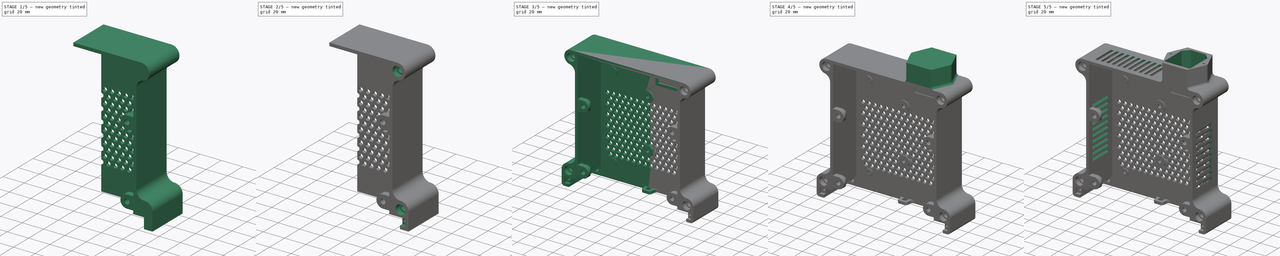
[diagram: build sequence overview — one tinted view per stage of 5, left to right]
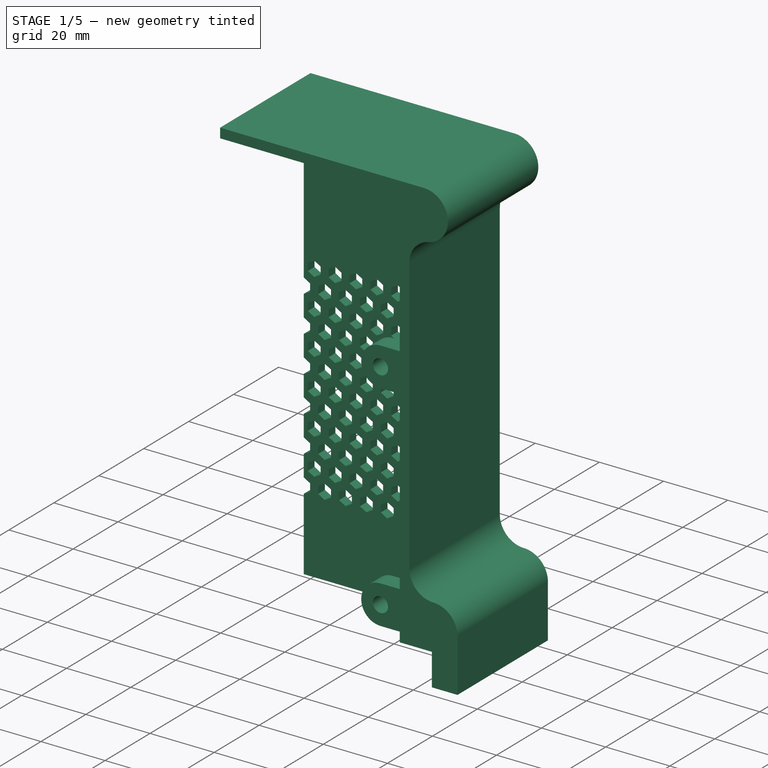
[diagram: stage 1 of 5 — iso view after this stage's code; geometry added in this stage tinted green]
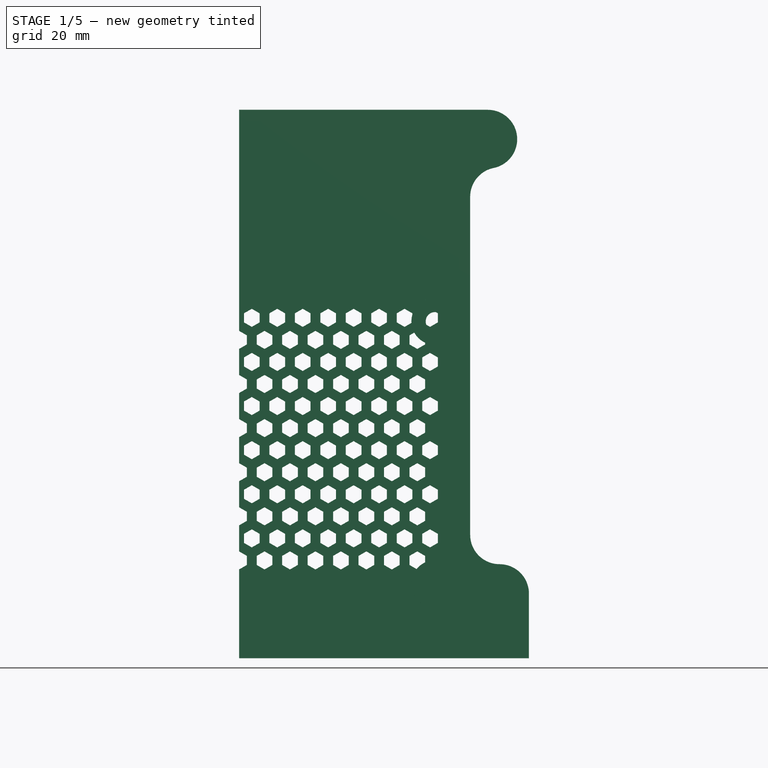
[diagram: stage 1 of 5 — front view after this stage's code; geometry added in this stage tinted green]
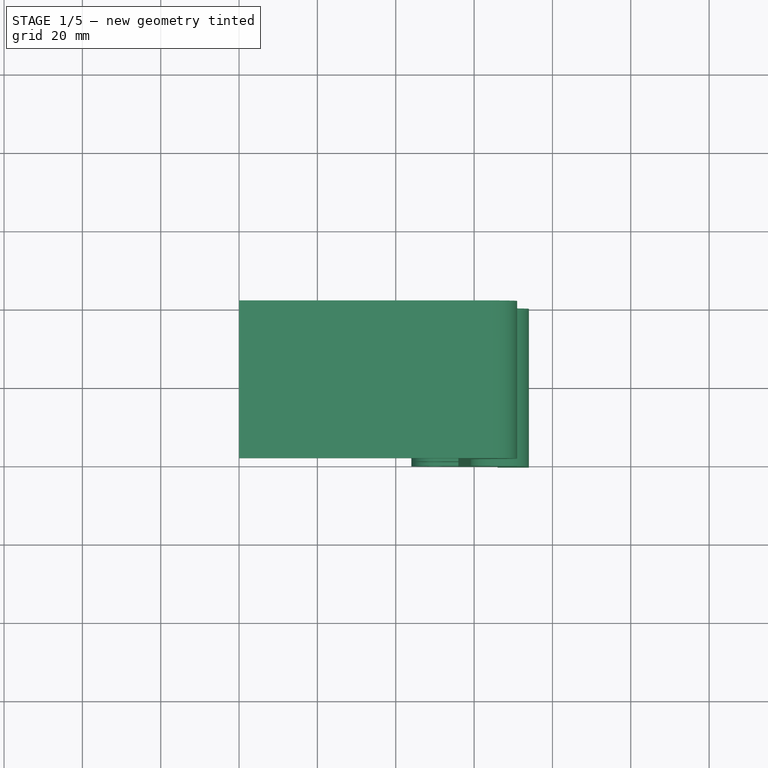
[diagram: stage 1 of 5 — top view after this stage's code; geometry added in this stage tinted green]
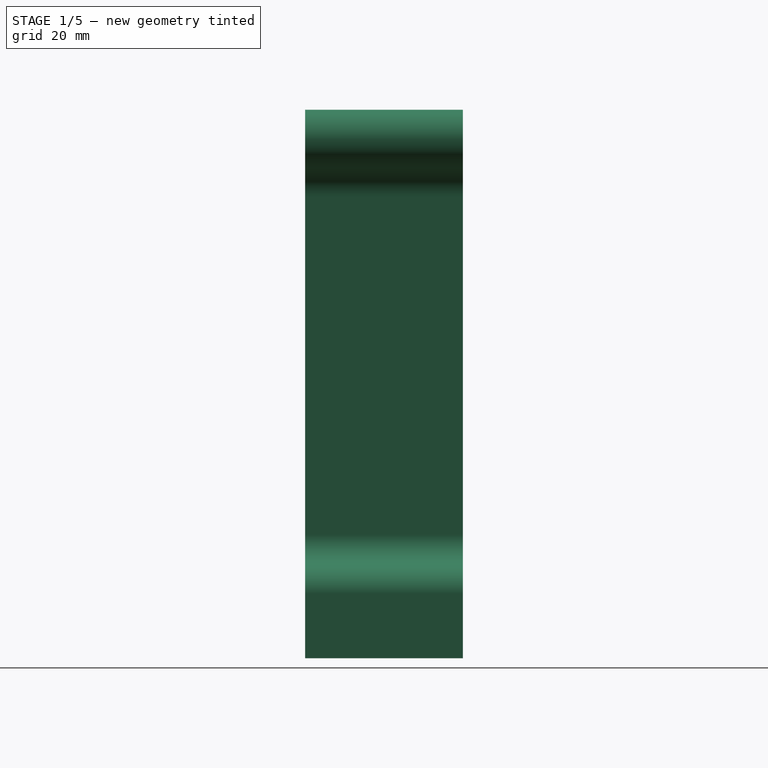
[diagram: stage 1 of 5 — right view after this stage's code; geometry added in this stage tinted green]
FCSTD DOCUMENT  (FreeCAD 1.0R39319 (Git))
Label: Stack_Module_PSU_vent
License: All rights reserved
LicenseURL: https://en.wikipedia.org/wiki/All_rights_reserved
objects: Sketcher::SketchObject×26, PartDesign::Pocket×19, PartDesign::CoordinateSystem×13, PartDesign::Pad×7, PartDesign::LinearPattern×6, PartDesign::Fillet×6, PartDesign::MultiTransform×2, PartDesign::Mirrored×1, PartDesign::Body×1, App::Part×1
note: 180 computed .brp shape members not serialized (recipe doc carries the construction recipe); baked Part::Feature solids carry a one-line shape summary decoded from their .brp

FEATURE [Sketcher::SketchObject] Sketch
  ArcFitTolerance = 1e-06
  AttachmentSupport = -> [XZ_Plane001]
  FullyConstrained = true
  MakeInternals = false
  MapMode = 5
  Placement = pos=(0,0,0) rot=(1,0,0;1.5708rad)
  sketch-geometry (9):
    g0: LineSegment StartX=0 StartY=-70 StartZ=0 EndX=74 EndY=-70 EndZ=0
    g1: LineSegment StartX=74 StartY=-70 StartZ=0 EndX=74 EndY=-53.5 EndZ=0
    g2: ArcOfCircle CenterX=66.5 CenterY=-53.5 CenterZ=0 NormalX=0 NormalY=0 NormalZ=1 AngleXU=0 Radius=7.5 StartAngle=0 EndAngle=1.5708
    g3: ArcOfCircle CenterX=66.5 CenterY=-38.5 CenterZ=0 NormalX=0 NormalY=0 NormalZ=1 AngleXU=0 Radius=7.5 StartAngle=3.14159 EndAngle=4.71239
    g4: LineSegment StartX=59 StartY=-38.5 StartZ=0 EndX=59 EndY=47.8031 EndZ=0
    g5: ArcOfCircle CenterX=66.5 CenterY=47.8031 CenterZ=0 NormalX=0 NormalY=0 NormalZ=1 AngleXU=0 Radius=7.5 StartAngle=1.77215 EndAngle=3.14159
    g6: ArcOfCircle CenterX=63.5 CenterY=62.5 CenterZ=0 NormalX=0 NormalY=0 NormalZ=1 AngleXU=0 Radius=7.5 StartAngle=4.91375 EndAngle=7.85398
    g7: LineSegment StartX=63.5 StartY=70 StartZ=0 EndX=0 EndY=70 EndZ=0
    g8: LineSegment StartX=0 StartY=70 StartZ=0 EndX=0 EndY=-70 EndZ=0
  constraints (26):
    c: PointOnObject(g0,g-2)
    c: Horizontal(g0)
    c: Coincident(g0,g1)
    c: Vertical(g1)
    c: Tangent(g1,g2) = -1.5708
    c: Tangent(g2,g3) = 1.5708
    c: Tangent(g3,g4) = 1.5708
    c: Tangent(g4,g5) = 1.5708
    c: Tangent(g5,g6) = 1.5708
    c: Tangent(g6,g7) = -1.5708
    c: Coincident(g7,g8)
    c: Coincident(g8,g0)
    c: Vertical(g8)
    c: Horizontal(g7)
    c: Vertical(g4)
    c: DistanceX(g0,g0) = 74
    c: Distance(g7,g0) = 140
    c: Distance(g2,g0) = 16.5
    c: Radius(g2) = 7.5
    c: Distance(g8,g4) = 59
    c: Radius(g6) = 7.5
    c: Distance(g6,g8) = 63.5
    c: Distance(g2,g8) = 66.5
    c: Distance(g-1,g0) = 70
    c: Radius(g3) = 7.5
    c: Radius(g5) = 7.5
FEATURE [PartDesign::Pad] Pad
  Direction = (0,-1,2e-16)
  Length = 40.25
  Length2 = 10
  Placement = pos=(0,0,0) rot=(1,0,0;1.5708rad)
  Profile = -> Sketch
  ReferenceAxis = -> Sketch [N_Axis]
  Refine = true
  Suppressed = false
  Type = 0
FEATURE [Sketcher::SketchObject] Sketch001
  ArcFitTolerance = 1e-06
  AttachmentSupport = -> [Pad]
  ExternalGeometry = -> [Pad]
  FullyConstrained = true
  MakeInternals = false
  MapMode = 5
  Placement = pos=(0,-40.25,0) rot=(1,0,0;1.5708rad)
  sketch-geometry (4):
    g0: LineSegment StartX=0 StartY=-70 StartZ=0 EndX=66 EndY=-70 EndZ=0
    g1: LineSegment StartX=66 StartY=-70 StartZ=0 EndX=66 EndY=-60 EndZ=0
    g2: LineSegment StartX=66 StartY=-60 StartZ=0 EndX=0 EndY=-60 EndZ=0
    g3: LineSegment StartX=0 StartY=-60 StartZ=0 EndX=0 EndY=-70 EndZ=0
  constraints (11):
    c: Coincident(g0,g1)
    c: Coincident(g1,g2)
    c: Coincident(g2,g3)
    c: Coincident(g3,g0)
    c: Horizontal(g0)
    c: Horizontal(g2)
    c: Vertical(g1)
    c: Vertical(g3)
    c: Coincident(g0,g-3)
    c: Distance(g0,g2) = 10
    c: Distance(g1,g3) = 66
FEATURE [PartDesign::Pocket] Pocket
  BaseFeature = -> Pad
  Direction = (0,1,-2e-16)
  Length = 0
  Length2 = 5
  Offset = -3
  Placement = pos=(0,0,0) rot=(1,0,0;1.5708rad)
  Profile = -> Sketch001
  ReferenceAxis = -> Sketch001 [N_Axis]
  Refine = true
  Suppressed = false
  Type = 3
  UpToFace = -> Pad [Face10]
FEATURE [Sketcher::SketchObject] Sketch002
  ArcFitTolerance = 1e-06
  AttachmentSupport = -> [Pocket]
  ExternalGeometry = -> [Pocket]
  FullyConstrained = true
  MakeInternals = false
  MapMode = 5
  Placement = pos=(0,-40.25,0) rot=(1,0,0;1.5708rad)
  sketch-geometry (4):
    g0: LineSegment StartX=0 StartY=67 StartZ=0 EndX=0 EndY=-60 EndZ=0
    g1: LineSegment StartX=0 StartY=-60 StartZ=0 EndX=56 EndY=-60 EndZ=0
    g2: LineSegment StartX=56 StartY=-60 StartZ=0 EndX=56 EndY=67 EndZ=0
    g3: LineSegment StartX=56 StartY=67 StartZ=0 EndX=0 EndY=67 EndZ=0
  constraints (12):
    c: Coincident(g0,g1)
    c: Coincident(g1,g2)
    c: Coincident(g2,g3)
    c: Coincident(g3,g0)
    c: Vertical(g0)
    c: Vertical(g2)
    c: Horizontal(g1)
    c: Horizontal(g3)
    c: PointOnObject(g0,g-2)
    c: PointOnObject(g1,g-5)
    c: Distance(g-4,g2) = 3
    c: Distance(g-3,g3) = 3
FEATURE [PartDesign::Pocket] Pocket001
  BaseFeature = -> Pocket
  Direction = (0,1,-2e-16)
  Length = 0
  Length2 = 5
  Placement = pos=(0,0,0) rot=(1,0,0;1.5708rad)
  Profile = -> Sketch002
  ReferenceAxis = -> Sketch002 [N_Axis]
  Refine = true
  Suppressed = false
  Type = 3
  UpToFace = -> Pocket [Face6]
FEATURE [Sketcher::SketchObject] Sketch003
  ArcFitTolerance = 1e-06
  AttachmentSupport = -> [Pocket001]
  FullyConstrained = true
  MakeInternals = false
  MapMode = 5
  Placement = pos=(0,-3,0) rot=(1,0,0;1.5708rad)
  sketch-geometry (28):
    g0: LineSegment StartX=2 StartY=1.1547 StartZ=0 EndX=0 EndY=2.3094 EndZ=0
    g1: LineSegment StartX=0 StartY=2.3094 StartZ=0 EndX=-2 EndY=1.1547 EndZ=0
    g2: LineSegment StartX=-2 StartY=1.1547 StartZ=0 EndX=-2 EndY=-1.1547 EndZ=0
    g3: LineSegment StartX=-2 StartY=-1.1547 StartZ=0 EndX=0 EndY=-2.3094 EndZ=0
    g4: LineSegment StartX=0 StartY=-2.3094 StartZ=0 EndX=2 EndY=-1.1547 EndZ=0
    g5: LineSegment StartX=2 StartY=-1.1547 StartZ=0 EndX=2 EndY=1.1547 EndZ=0
    g6: Circle [constr] CenterX=0 CenterY=0 CenterZ=0 NormalX=0 NormalY=0 NormalZ=1 AngleXU=0 Radius=2.3094
    g7: LineSegment StartX=5.25 StartY=6.7847 StartZ=0 EndX=3.25 EndY=7.9394 EndZ=0
    g8: LineSegment StartX=3.25 StartY=7.9394 StartZ=0 EndX=1.25 EndY=6.7847 EndZ=0
    g9: LineSegment StartX=1.25 StartY=6.7847 StartZ=0 EndX=1.25 EndY=4.4753 EndZ=0
    g10: LineSegment StartX=1.25 StartY=4.4753 StartZ=0 EndX=3.25 EndY=3.3206 EndZ=0
    g11: LineSegment StartX=3.25 StartY=3.3206 StartZ=0 EndX=5.25 EndY=4.4753 EndZ=0
    g12: LineSegment StartX=5.25 StartY=4.4753 StartZ=0 EndX=5.25 EndY=6.7847 EndZ=0
    g13: Circle [constr] CenterX=3.25 CenterY=5.63 CenterZ=0 NormalX=0 NormalY=0 NormalZ=1 AngleXU=0 Radius=2.3094
    g14: LineSegment StartX=6.5 StartY=2.3094 StartZ=0 EndX=4.5 EndY=1.1547 EndZ=0
    g15: LineSegment StartX=4.5 StartY=1.1547 StartZ=0 EndX=4.5 EndY=-1.1547 EndZ=0
    g16: LineSegment StartX=4.5 StartY=-1.1547 StartZ=0 EndX=6.5 EndY=-2.3094 EndZ=0
    g17: LineSegment StartX=6.5 StartY=-2.3094 StartZ=0 EndX=8.5 EndY=-1.1547 EndZ=0
    g18: LineSegment StartX=8.5 StartY=-1.1547 StartZ=0 EndX=8.5 EndY=1.1547 EndZ=0
    g19: LineSegment StartX=8.5 StartY=1.1547 StartZ=0 EndX=6.5 EndY=2.3094 EndZ=0
    g20: Circle [constr] CenterX=6.5 CenterY=0 CenterZ=0 NormalX=0 NormalY=0 NormalZ=1 AngleXU=0 Radius=2.3094
    g21: LineSegment StartX=11.75 StartY=6.7847 StartZ=0 EndX=9.75 EndY=7.9394 EndZ=0
    g22: LineSegment StartX=9.75 StartY=7.9394 StartZ=0 EndX=7.75 EndY=6.7847 EndZ=0
    g23: LineSegment StartX=7.75 StartY=6.7847 StartZ=0 EndX=7.75 EndY=4.4753 EndZ=0
    g24: LineSegment StartX=7.75 StartY=4.4753 StartZ=0 EndX=9.75 EndY=3.3206 EndZ=0
    g25: LineSegment StartX=9.75 StartY=3.3206 StartZ=0 EndX=11.75 EndY=4.4753 EndZ=0
    g26: LineSegment StartX=11.75 StartY=4.4753 StartZ=0 EndX=11.75 EndY=6.7847 EndZ=0
    g27: Circle [constr] CenterX=9.75 CenterY=5.63 CenterZ=0 NormalX=0 NormalY=0 NormalZ=1 AngleXU=0 Radius=2.3094
  constraints (70):
    c: Coincident(g0,g1)
    c: Coincident(g1,g2)
    c: Coincident(g2,g3)
    c: Coincident(g3,g4)
    c: Coincident(g4,g5)
    c: Coincident(g5,g0)
    c: Equal(g0, g1-g5) x5
    c: PointOnObject(g0,g6)
    c: PointOnObject(g1,g6)
    c: PointOnObject(g2,g6)
    c: PointOnObject(g3,g6)
    c: PointOnObject(g4,g6)
    c: PointOnObject(g5,g6)
    c: Coincident(g6,g-1)
    c: PointOnObject(g0,g-2)
    c: Distance(g5,g2) = 4
    c: Coincident(g7,g8)
    c: Coincident(g8,g9)
    c: Coincident(g9,g10)
    c: Coincident(g10,g11)
    c: Coincident(g11,g12)
    c: Coincident(g12,g7)
    c: Equal(g7, g8-g12) x5
    c: PointOnObject(g7,g13)
    c: PointOnObject(g8,g13)
    c: PointOnObject(g9,g13)
    c: PointOnObject(g10,g13)
    c: PointOnObject(g11,g13)
    c: PointOnObject(g12,g13)
    c: Distance(g13,g-2) = 3.25
    c: DistanceY(g6,g13) = 5.63
    c: Vertical(g9)
    c: Coincident(g14,g15)
    c: Coincident(g15,g16)
    c: Coincident(g16,g17)
    c: Coincident(g17,g18)
    c: Coincident(g18,g19)
    c: Coincident(g19,g14)
    c: Equal(g14, g15-g19) x5
    c: PointOnObject(g14,g20)
    c: PointOnObject(g15,g20)
    c: PointOnObject(g16,g20)
    c: PointOnObject(g17,g20)
    c: PointOnObject(g18,g20)
    c: PointOnObject(g19,g20)
    c: PointOnObject(g20,g-1)
    c: Distance(g20,g-2) = 6.5
    c: Vertical(g15)
    c: Distance(g15,g5) = 2.5
    c: Distance(g10,g0) = 2.50072
    c: Distance(g5,g2) = 4
    c: Distance(g18,g15) = 4
    c: Distance(g12,g9) = 4
    c: Coincident(g21,g22)
    c: Coincident(g22,g23)
    c: Coincident(g23,g24)
    c: Coincident(g24,g25)
    c: Coincident(g25,g26)
    c: Coincident(g26,g21)
    c: Equal(g21, g22-g26) x5
    c: PointOnObject(g21,g27)
    c: PointOnObject(g22,g27)
    c: PointOnObject(g23,g27)
    c: PointOnObject(g24,g27)
    c: PointOnObject(g25,g27)
    c: PointOnObject(g26,g27)
    c: Vertical(g23)
    c: Distance(g26,g23) = 4
    c: Distance(g27,g-1) = 5.63
    c: DistanceX(g13,g27) = 6.5
FEATURE [PartDesign::Pocket] Pocket002
  BaseFeature = -> Pocket001
  Direction = (0,1,-2e-16)
  Length = 5
  Length2 = 5
  Placement = pos=(0,0,0) rot=(1,0,0;1.5708rad)
  Profile = -> Sketch003
  ReferenceAxis = -> Sketch003 [N_Axis]
  Refine = true
  Suppressed = false
  Type = 1
FEATURE [PartDesign::LinearPattern] LinearPattern
  Direction = -> X_Axis001
  Length = 39
  Mode = 1
  Occurrences = 4
  Offset = 13
  Placement = pos=(0,0,0) rot=(1,0,0;1.5708rad)
  Refine = true
  Suppressed = false
  TransformMode = 0
FEATURE [PartDesign::LinearPattern] LinearPattern001
  Direction = -> Z_Axis001
  Length = 45.04
  Mode = 1
  Occurrences = 5
  Offset = 11.26
  Placement = pos=(0,0,0) rot=(1,0,0;1.5708rad)
  Refine = true
  Reversed = true
  Suppressed = false
  TransformMode = 0
FEATURE [PartDesign::LinearPattern] LinearPattern002
  Direction = -> Z_Axis001
  Length = 11.26
  Mode = 1
  Occurrences = 2
  Offset = 11.26
  Placement = pos=(0,0,0) rot=(1,0,0;1.5708rad)
  Refine = true
  Suppressed = false
  TransformMode = 0
FEATURE [PartDesign::MultiTransform] MultiTransform
  BaseFeature = -> Pocket002
  Originals = -> [Pocket002]
  Placement = pos=(0,0,0) rot=(1,0,0;1.5708rad)
  Refine = true
  Suppressed = false
  TransformMode = 0
  Transformations = -> [LinearPattern,LinearPattern001,LinearPattern002]
FEATURE [Sketcher::SketchObject] Sketch004
  ArcFitTolerance = 1e-06
  AttachmentSupport = -> [MultiTransform]
  ExternalGeometry = -> [MultiTransform]
  FullyConstrained = true
  MakeInternals = false
  MapMode = 5
  Placement = pos=(0,-40.25,0) rot=(1,0,0;1.5708rad)
  sketch-geometry (11):
    g0: LineSegment StartX=56 StartY=-45 StartZ=0 EndX=50 EndY=-45 EndZ=0
    g1: ArcOfCircle CenterX=50 CenterY=-51 CenterZ=0 NormalX=0 NormalY=0 NormalZ=1 AngleXU=0 Radius=6 StartAngle=1.5708 EndAngle=4.71239
    g2: LineSegment StartX=50 StartY=-57 StartZ=0 EndX=56 EndY=-57 EndZ=0
    g3: LineSegment StartX=56 StartY=-57 StartZ=0 EndX=56 EndY=-45 EndZ=0
    g4: LineSegment StartX=56 StartY=22 StartZ=0 EndX=50 EndY=22 EndZ=0
    g5: ArcOfCircle CenterX=50 CenterY=16 CenterZ=0 NormalX=0 NormalY=0 NormalZ=1 AngleXU=0 Radius=6 StartAngle=1.5708 EndAngle=4.71239
    g6: LineSegment StartX=50 StartY=10 StartZ=0 EndX=56 EndY=10 EndZ=0
    g7: LineSegment StartX=56 StartY=10 StartZ=0 EndX=56 EndY=22 EndZ=0
    g8: LineSegment [constr] StartX=50 StartY=16 StartZ=0 EndX=50 EndY=-51 EndZ=0
    g9: Circle CenterX=50 CenterY=16 CenterZ=0 NormalX=0 NormalY=0 NormalZ=1 AngleXU=0 Radius=2.35
    g10: Circle CenterX=50 CenterY=-51 CenterZ=0 NormalX=0 NormalY=0 NormalZ=1 AngleXU=0 Radius=2.35
  constraints (28):
    c: Horizontal(g0)
    c: Tangent(g0,g1) = -1.5708
    c: Tangent(g1,g2) = -1.5708
    c: Coincident(g2,g3)
    c: Coincident(g3,g0)
    c: Vertical(g3)
    c: Horizontal(g2)
    c: Horizontal(g4)
    c: Tangent(g4,g5) = -1.5708
    c: Tangent(g5,g6) = -1.5708
    c: Coincident(g6,g7)
    c: Coincident(g7,g4)
    c: Vertical(g7)
    c: Horizontal(g6)
    c: Coincident(g8,g5)
    c: Coincident(g8,g1)
    c: Vertical(g8)
    c: PointOnObject(g4,g-3)
    c: PointOnObject(g0,g-3)
    c: Distance(g6,g4) = 12
    c: Distance(g2,g0) = 12
    c: Distance(g2,g-4) = 13
    c: DistanceY(g8,g8) = 67
    c: Distance(g-2,g8) = 50
    c: Coincident(g9,g5)
    c: Coincident(g10,g1)
    c: Diameter(g10) = 4.7
    c: Diameter(g9) = 4.7
FEATURE [PartDesign::Pad] Pad001
  BaseFeature = -> MultiTransform
  Direction = (0,-1,2e-16)
  Length = 5.5
  Length2 = 10
  Placement = pos=(0,0,0) rot=(1,0,0;1.5708rad)
  Profile = -> Sketch004
  ReferenceAxis = -> Sketch004 [N_Axis]
  Refine = true
  Reversed = true
  Suppressed = false
  Type = 0
FEATURE [Sketcher::SketchObject] Sketch006
  ArcFitTolerance = 1e-06
  AttachmentSupport = -> [Pad001]
  ExternalGeometry = -> [Pad001]
  FullyConstrained = true
  MakeInternals = false
  MapMode = 5
  Placement = pos=(0,-3.08e-14,-70) rot=(1,0,0;3.14159rad)
  sketch-geometry (3):
    g0: LineSegment StartX=44 StartY=37.25 StartZ=0 EndX=44 EndY=34.75 EndZ=0
    g1: LineSegment StartX=44 StartY=34.75 StartZ=0 EndX=45.4434 EndY=34.75 EndZ=0
    g2: LineSegment StartX=45.4434 StartY=34.75 StartZ=0 EndX=44 EndY=37.25 EndZ=0
  constraints (9):
    c: Vertical(g0)
    c: Coincident(g0,g1)
    c: Horizontal(g1)
    c: Coincident(g1,g2)
    c: Coincident(g2,g0)
    c: Distance(g0,g-4) = 3
    c: Distance(g-3,g0) = 12
    c: PointOnObject(g1,g-5)
    c: Angle(g0,g2) = 0.523599
FEATURE [PartDesign::Pocket] Pocket003
  BaseFeature = -> Pad001
  Direction = (0,0,1)
  Length = 0
  Length2 = 5
  Placement = pos=(0,0,0) rot=(1,0,0;1.5708rad)
  Profile = -> Sketch006
  ReferenceAxis = -> Sketch006 [N_Axis]
  Refine = true
  Suppressed = false
  Type = 3
  UpToFace = -> Pad001 [Face585]
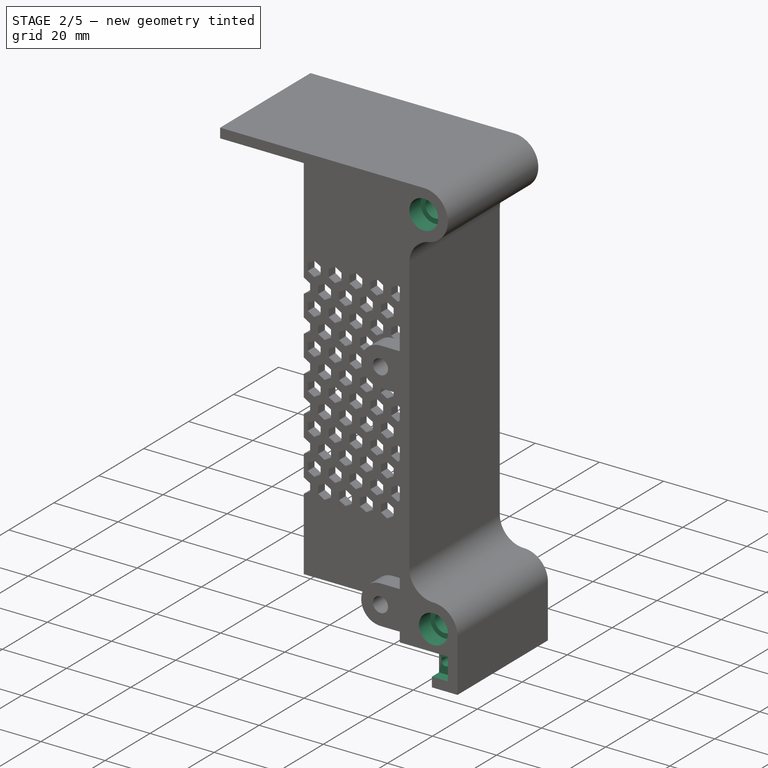
[diagram: stage 2 of 5 — iso view after this stage's code; geometry added in this stage tinted green]
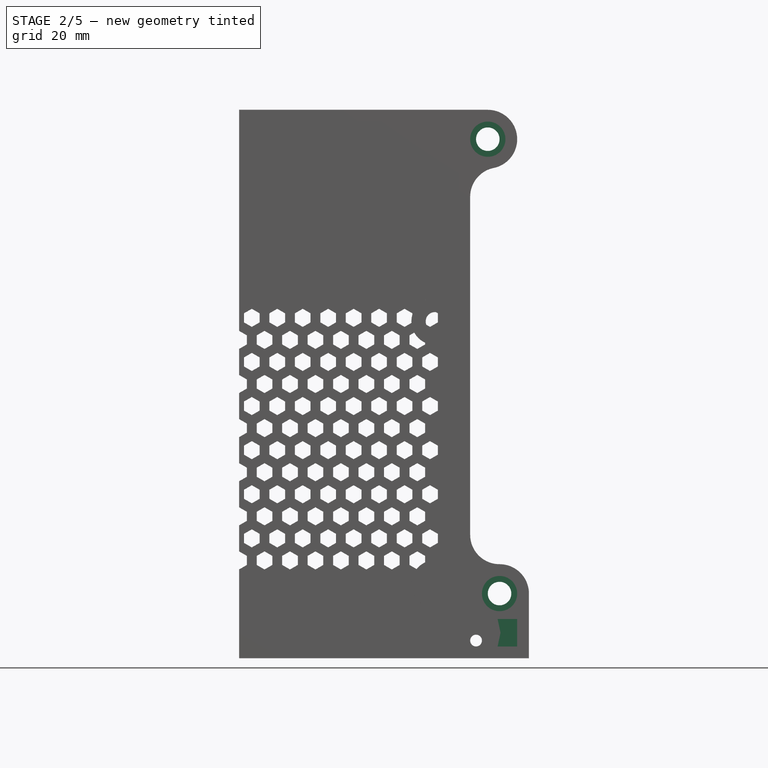
[diagram: stage 2 of 5 — front view after this stage's code; geometry added in this stage tinted green]
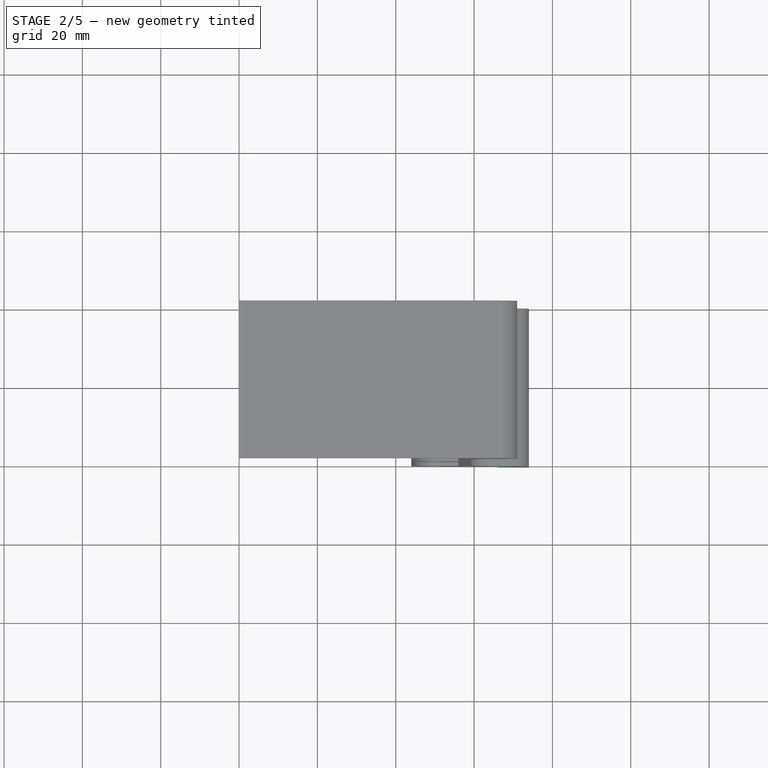
[diagram: stage 2 of 5 — top view after this stage's code; geometry added in this stage tinted green]
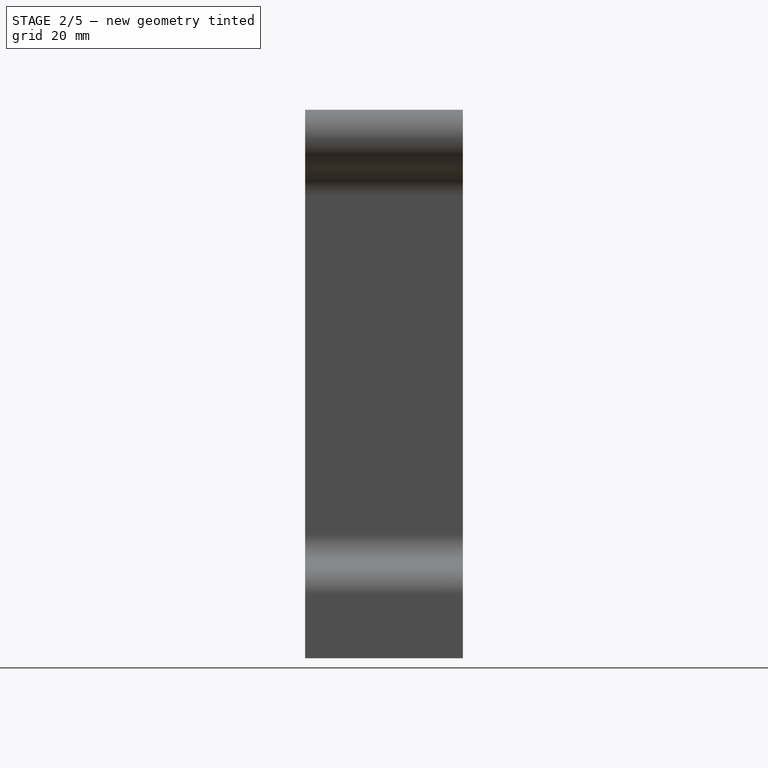
[diagram: stage 2 of 5 — right view after this stage's code; geometry added in this stage tinted green]
FEATURE [Sketcher::SketchObject] Sketch007
  ArcFitTolerance = 1e-06
  AttachmentSupport = -> [Pocket003]
  ExternalGeometry = -> [Pocket003]
  FullyConstrained = true
  MakeInternals = false
  MapMode = 5
  Placement = pos=(0,-40.25,0) rot=(1,0,0;1.5708rad)
  sketch-geometry (4):
    g0: LineSegment StartX=66 StartY=-60 StartZ=0 EndX=66 EndY=-67 EndZ=0
    g1: LineSegment StartX=66 StartY=-67 StartZ=0 EndX=71 EndY=-67 EndZ=0
    g2: LineSegment StartX=71 StartY=-67 StartZ=0 EndX=71 EndY=-60 EndZ=0
    g3: LineSegment StartX=71 StartY=-60 StartZ=0 EndX=66 EndY=-60 EndZ=0
  constraints (11):
    c: Coincident(g0,g1)
    c: Coincident(g1,g2)
    c: Coincident(g2,g3)
    c: Coincident(g3,g0)
    c: Vertical(g0)
    c: Vertical(g2)
    c: Horizontal(g1)
    c: Horizontal(g3)
    c: Coincident(g0,g-3)
    c: Distance(g1,g3) = 7
    c: Distance(g2,g0) = 5
FEATURE [PartDesign::Pocket] Pocket004
  BaseFeature = -> Pocket003
  Direction = (0,1,-2e-16)
  Length = 3.2
  Length2 = 5
  Placement = pos=(0,0,0) rot=(1,0,0;1.5708rad)
  Profile = -> Sketch007
  ReferenceAxis = -> Sketch007 [N_Axis]
  Refine = true
  Suppressed = false
  Type = 0
FEATURE [Sketcher::SketchObject] Sketch008
  ArcFitTolerance = 1e-06
  AttachmentSupport = -> [Pocket004]
  ExternalGeometry = -> [Pocket004]
  FullyConstrained = true
  MakeInternals = false
  MapMode = 5
  Placement = pos=(0,-37.05,0) rot=(1,0,0;1.5708rad)
  sketch-geometry (1):
    g0: Circle CenterX=68 CenterY=-63.5 CenterZ=0 NormalX=0 NormalY=0 NormalZ=1 AngleXU=0 Radius=1.25
  constraints (3):
    c: Diameter(g0) = 2.5
    c: Distance(g0,g-2) = 68
    c: Distance(g0,g-3) = 3.5
FEATURE [PartDesign::Pocket] Pocket005
  BaseFeature = -> Pocket004
  Direction = (0,1,-2e-16)
  Length = 10
  Length2 = 5
  Placement = pos=(0,0,0) rot=(1,0,0;1.5708rad)
  Profile = -> Sketch008
  ReferenceAxis = -> Sketch008 [N_Axis]
  Refine = true
  Suppressed = false
  Type = 0
FEATURE [Sketcher::SketchObject] Sketch009
  ArcFitTolerance = 1e-06
  AttachmentSupport = -> [Pocket005]
  ExternalGeometry = -> [Pocket005]
  FullyConstrained = true
  MakeInternals = false
  MapMode = 5
  Placement = pos=(0,-3,0) rot=(1,0,0;1.5708rad)
  sketch-geometry (1):
    g0: Circle CenterX=60.5 CenterY=-65.5 CenterZ=0 NormalX=0 NormalY=0 NormalZ=1 AngleXU=0 Radius=1.5
  constraints (3):
    c: Diameter(g0) = 3
    c: Distance(g0,g-3) = 4.5
    c: Distance(g0,g-2) = 60.5
FEATURE [PartDesign::Pocket] Pocket006
  BaseFeature = -> Pocket005
  Direction = (0,1,-2e-16)
  Length = 5
  Length2 = 5
  Placement = pos=(0,0,0) rot=(1,0,0;1.5708rad)
  Profile = -> Sketch009
  ReferenceAxis = -> Sketch009 [N_Axis]
  Refine = true
  Suppressed = false
  Type = 1
FEATURE [Sketcher::SketchObject] Sketch010
  ArcFitTolerance = 1e-06
  AttachmentSupport = -> [Pocket006]
  ExternalGeometry = -> [Pocket006]
  FullyConstrained = true
  MakeInternals = false
  MapMode = 5
  Placement = pos=(-6.78e-14,0,-60) rot=(1,0,0;3.14159rad)
  sketch-geometry (3):
    g0: LineSegment [constr] StartX=59 StartY=34 StartZ=0 EndX=59 EndY=6 EndZ=0
    g1: Circle CenterX=59 CenterY=34 CenterZ=0 NormalX=0 NormalY=0 NormalZ=1 AngleXU=0 Radius=1.25
    g2: Circle CenterX=59 CenterY=6 CenterZ=0 NormalX=0 NormalY=0 NormalZ=1 AngleXU=0 Radius=1.25
  constraints (8):
    c: Vertical(g0)
    c: Coincident(g1,g0)
    c: Coincident(g2,g0)
    c: Distance(g0,g-3) = 31
    c: Distance(g-4,g0) = 3
    c: Distance(g0,g-3) = 3
    c: Diameter(g2) = 2.5
    c: Diameter(g1) = 2.5
FEATURE [PartDesign::Pocket] Pocket007
  BaseFeature = -> Pocket006
  Direction = (1.1e-15,0,1)
  Length = 10
  Length2 = 5
  Placement = pos=(0,0,0) rot=(1,0,0;1.5708rad)
  Profile = -> Sketch010
  ReferenceAxis = -> Sketch010 [N_Axis]
  Refine = true
  Suppressed = false
  Type = 0
FEATURE [Sketcher::SketchObject] Sketch011
  ArcFitTolerance = 1e-06
  AttachmentSupport = -> [Pocket007]
  ExternalGeometry = -> [Pocket007]
  FullyConstrained = true
  MakeInternals = false
  MapMode = 5
  Placement = pos=(0,-40.25,0) rot=(1,0,0;1.5708rad)
  sketch-geometry (2):
    g0: Circle CenterX=63.5 CenterY=62.5 CenterZ=0 NormalX=0 NormalY=0 NormalZ=1 AngleXU=0 Radius=3
    g1: Circle CenterX=66.5 CenterY=-53.5 CenterZ=0 NormalX=0 NormalY=0 NormalZ=1 AngleXU=0 Radius=3
  constraints (7):
    c: Coincident(g0,g-3)
    c: Coincident(g1,g-4)
    c: Diameter(g0) = 6
    c: Diameter(g1) = 6
    c: DistanceY(g1,g0) = 116
    c: Distance(g0,g-2) = 63.5
    c: DistanceX(g-1,g1) = 66.5
FEATURE [PartDesign::Pocket] Pocket008
  BaseFeature = -> Pocket007
  Direction = (0,1,-2e-16)
  Length = 5
  Length2 = 5
  Placement = pos=(0,0,0) rot=(1,0,0;1.5708rad)
  Profile = -> Sketch011
  ReferenceAxis = -> Sketch011 [N_Axis]
  Refine = true
  Suppressed = false
  Type = 1
FEATURE [Sketcher::SketchObject] Sketch012
  ArcFitTolerance = 1e-06
  AttachmentSupport = -> [Pocket008]
  ExternalGeometry = -> [Pocket008]
  FullyConstrained = true
  MakeInternals = false
  MapMode = 5
  Placement = pos=(0,-40.25,0) rot=(1,0,0;1.5708rad)
  sketch-geometry (2):
    g0: Circle CenterX=63.5 CenterY=62.5 CenterZ=0 NormalX=0 NormalY=0 NormalZ=1 AngleXU=0 Radius=4.5
    g1: Circle CenterX=66.5 CenterY=-53.5 CenterZ=0 NormalX=0 NormalY=0 NormalZ=1 AngleXU=0 Radius=4.5
  constraints (4):
    c: Coincident(g0,g-4)
    c: Coincident(g1,g-3)
    c: Diameter(g1) = 9
    c: Diameter(g0) = 9
FEATURE [PartDesign::Pocket] Pocket009
  BaseFeature = -> Pocket008
  Direction = (0,1,-2e-16)
  Length = 5
  Length2 = 5
  Placement = pos=(0,0,0) rot=(1,0,0;1.5708rad)
  Profile = -> Sketch012
  ReferenceAxis = -> Sketch012 [N_Axis]
  Refine = true
  Suppressed = false
  Type = 0
FEATURE [Sketcher::SketchObject] Sketch013
  ArcFitTolerance = 1e-06
  AttachmentSupport = -> [Pocket009]
  ExternalGeometry = -> [Pocket009]
  FullyConstrained = true
  MakeInternals = false
  MapMode = 5
  Placement = pos=(0,-3e-16,0) rot=(-1,0,0;1.5708rad)
  sketch-geometry (2):
    g0: Circle CenterX=63.5 CenterY=-62.5 CenterZ=0 NormalX=0 NormalY=0 NormalZ=1 AngleXU=0 Radius=6
    g1: Circle CenterX=66.5 CenterY=53.5 CenterZ=0 NormalX=0 NormalY=0 NormalZ=1 AngleXU=0 Radius=6
  constraints (4):
    c: Coincident(g0,g-4)
    c: Coincident(g1,g-3)
    c: Diameter(g1) = 12
    c: Diameter(g0) = 12
FEATURE [PartDesign::Pocket] Pocket010
  BaseFeature = -> Pocket009
  Direction = (0,-1,-2e-16)
  Length = 5
  Length2 = 5
  Placement = pos=(0,0,0) rot=(1,0,0;1.5708rad)
  Profile = -> Sketch013
  ReferenceAxis = -> Sketch013 [N_Axis]
  Refine = true
  Suppressed = false
  Type = 0
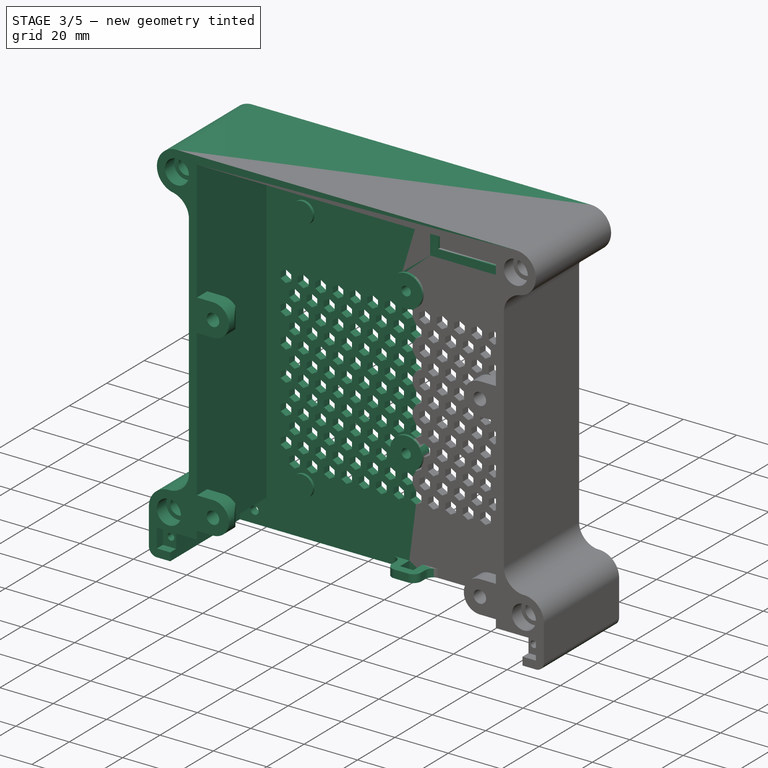
[diagram: stage 3 of 5 — iso view after this stage's code; geometry added in this stage tinted green]
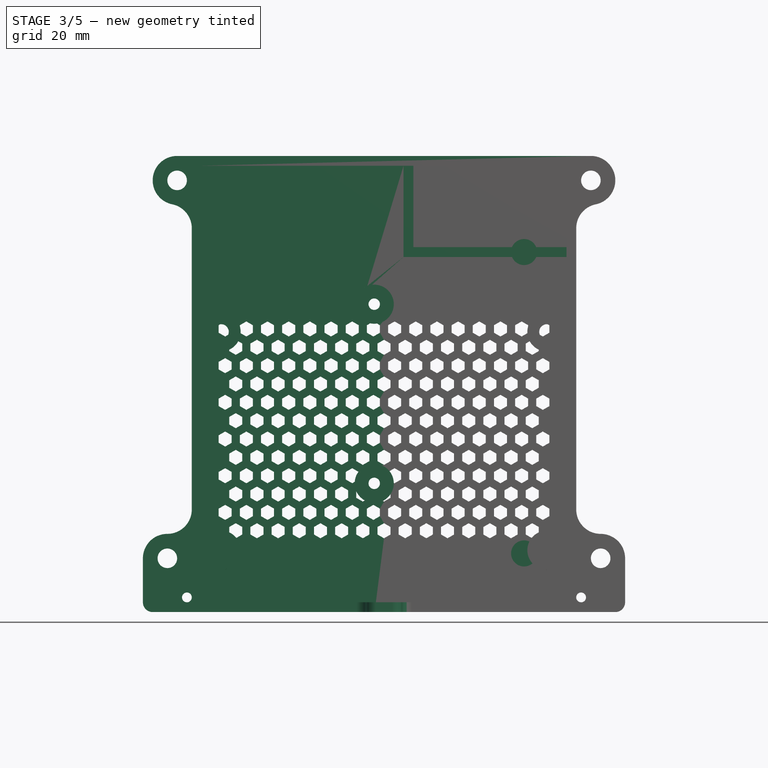
[diagram: stage 3 of 5 — front view after this stage's code; geometry added in this stage tinted green]
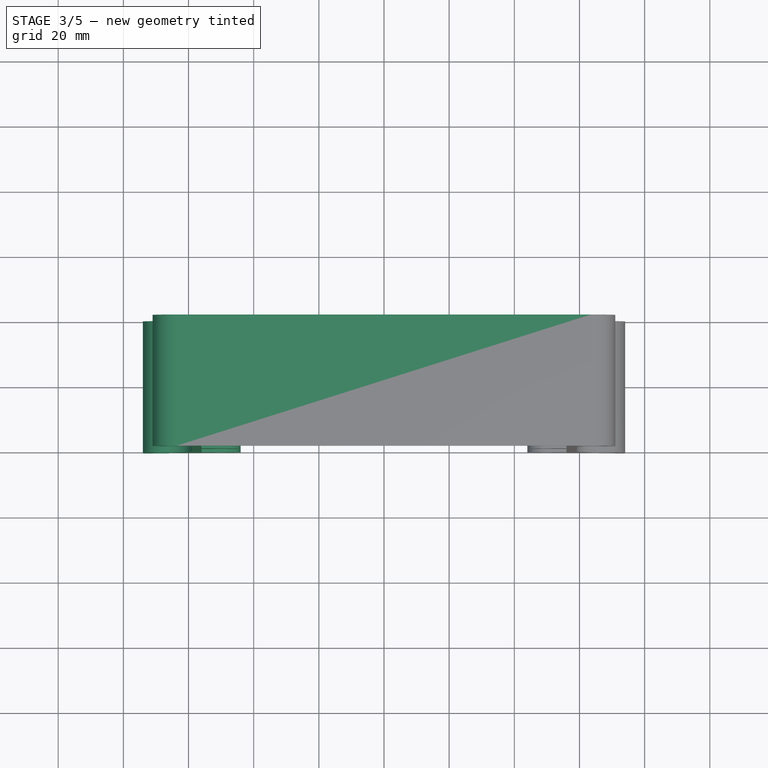
[diagram: stage 3 of 5 — top view after this stage's code; geometry added in this stage tinted green]
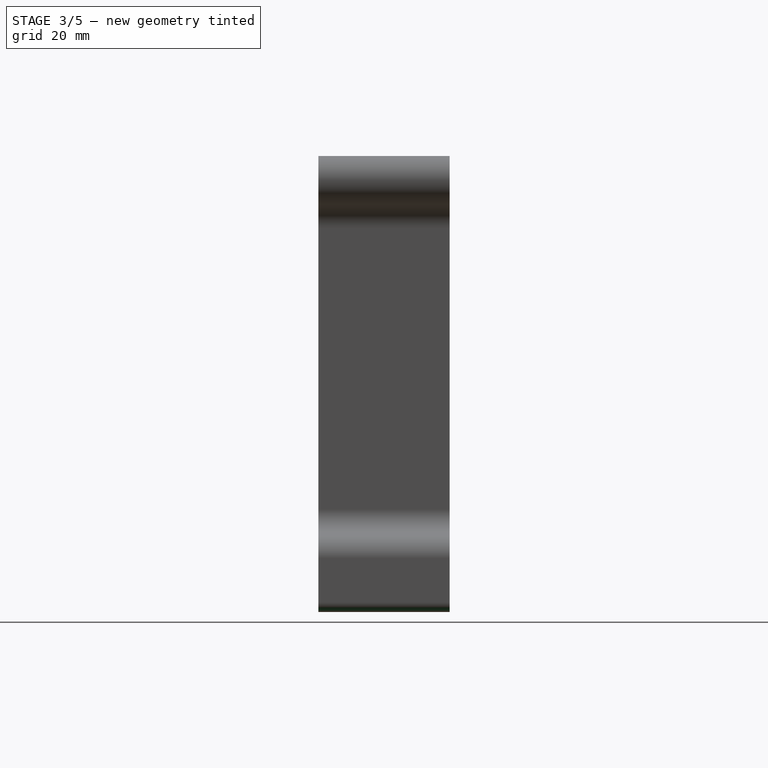
[diagram: stage 3 of 5 — right view after this stage's code; geometry added in this stage tinted green]
FEATURE [Sketcher::SketchObject] Sketch014
  ArcFitTolerance = 1e-06
  AttachmentSupport = -> [Pocket010]
  ExternalGeometry = -> [Pocket010]
  FullyConstrained = true
  MakeInternals = false
  MapMode = 5
  Placement = pos=(0,-5,0) rot=(-1,0,0;1.5708rad)
  sketch-geometry (14):
    g0: LineSegment StartX=66.5 StartY=58.25 StartZ=0 EndX=62.3864 EndY=55.875 EndZ=0
    g1: LineSegment StartX=62.3864 StartY=55.875 StartZ=0 EndX=62.3864 EndY=51.125 EndZ=0
    g2: LineSegment StartX=62.3864 StartY=51.125 StartZ=0 EndX=66.5 EndY=48.75 EndZ=0
    g3: LineSegment StartX=66.5 StartY=48.75 StartZ=0 EndX=70.6136 EndY=51.125 EndZ=0
    g4: LineSegment StartX=70.6136 StartY=51.125 StartZ=0 EndX=70.6136 EndY=55.875 EndZ=0
    g5: LineSegment StartX=70.6136 StartY=55.875 StartZ=0 EndX=66.5 EndY=58.25 EndZ=0
    g6: Circle [constr] CenterX=66.5 CenterY=53.5 CenterZ=0 NormalX=0 NormalY=0 NormalZ=1 AngleXU=0 Radius=4.75
    g7: LineSegment StartX=67.6136 StartY=-60.125 StartZ=0 EndX=63.5 EndY=-57.75 EndZ=0
    g8: LineSegment StartX=63.5 StartY=-57.75 StartZ=0 EndX=59.3864 EndY=-60.125 EndZ=0
    g9: LineSegment StartX=59.3864 StartY=-60.125 StartZ=0 EndX=59.3864 EndY=-64.875 EndZ=0
    g10: LineSegment StartX=59.3864 StartY=-64.875 StartZ=0 EndX=63.5 EndY=-67.25 EndZ=0
    g11: LineSegment StartX=63.5 StartY=-67.25 StartZ=0 EndX=67.6136 EndY=-64.875 EndZ=0
    g12: LineSegment StartX=67.6136 StartY=-64.875 StartZ=0 EndX=67.6136 EndY=-60.125 EndZ=0
    g13: Circle [constr] CenterX=63.5 CenterY=-62.5 CenterZ=0 NormalX=0 NormalY=0 NormalZ=1 AngleXU=0 Radius=4.75
  constraints (32):
    c: Coincident(g0,g1)
    c: Coincident(g1,g2)
    c: Coincident(g2,g3)
    c: Coincident(g3,g4)
    c: Coincident(g4,g5)
    c: Coincident(g5,g0)
    c: Equal(g0, g1-g5) x5
    c: PointOnObject(g0,g6)
    c: PointOnObject(g1,g6)
    c: PointOnObject(g2,g6)
    c: PointOnObject(g3,g6)
    c: PointOnObject(g4,g6)
    c: PointOnObject(g5,g6)
    c: Coincident(g7,g8)
    c: Coincident(g8,g9)
    c: Coincident(g9,g10)
    c: Coincident(g10,g11)
    c: Coincident(g11,g12)
    c: Coincident(g12,g7)
    c: Equal(g7, g8-g12) x5
    c: PointOnObject(g7,g13)
    c: PointOnObject(g8,g13)
    c: PointOnObject(g9,g13)
    c: PointOnObject(g10,g13)
    c: PointOnObject(g11,g13)
    c: PointOnObject(g12,g13)
    c: Coincident(g13,g-4)
    c: Diameter(g13) = 9.5
    c: Diameter(g6) = 9.5
    c: Coincident(g-3,g6)
    c: Vertical(g1)
    c: Vertical(g9)
FEATURE [PartDesign::Pocket] Pocket011
  BaseFeature = -> Pocket010
  Direction = (0,-1,-2e-16)
  Length = 5
  Length2 = 5
  Placement = pos=(0,0,0) rot=(1,0,0;1.5708rad)
  Profile = -> Sketch014
  ReferenceAxis = -> Sketch014 [N_Axis]
  Refine = true
  Suppressed = false
  Type = 0
FEATURE [PartDesign::Fillet] Fillet
  Base = -> Pocket011 [Edge2]
  BaseFeature = -> Pocket011
  Placement = pos=(0,0,0) rot=(1,0,0;1.5708rad)
  Radius = 3
  Refine = true
  SupportTransform = false
  Suppressed = false
  UseAllEdges = false
FEATURE [Sketcher::SketchObject] Sketch015
  ArcFitTolerance = 1e-06
  AttachmentSupport = -> [Fillet]
  ExternalGeometry = -> [Fillet]
  FullyConstrained = true
  MakeInternals = false
  MapMode = 5
  Placement = pos=(0,-3.08e-14,-70) rot=(1,0,0;3.14159rad)
  sketch-geometry (6):
    g0: LineSegment StartX=2.5 StartY=3 StartZ=0 EndX=2.5 EndY=8 EndZ=0
    g1: LineSegment StartX=2.5 StartY=8 StartZ=0 EndX=0 EndY=8 EndZ=0
    g2: LineSegment StartX=0 StartY=8 StartZ=0 EndX=0 EndY=11 EndZ=0
    g3: LineSegment StartX=0 StartY=11 StartZ=0 EndX=5.5 EndY=11 EndZ=0
    g4: LineSegment StartX=5.5 StartY=11 StartZ=0 EndX=5.5 EndY=3 EndZ=0
    g5: LineSegment StartX=5.5 StartY=3 StartZ=0 EndX=2.5 EndY=3 EndZ=0
  constraints (18):
    c: PointOnObject(g0,g-3)
    c: Vertical(g0)
    c: Coincident(g0,g1)
    c: PointOnObject(g1,g-2)
    c: Horizontal(g1)
    c: Coincident(g1,g2)
    c: PointOnObject(g2,g-2)
    c: Coincident(g2,g3)
    c: Horizontal(g3)
    c: Coincident(g3,g4)
    c: PointOnObject(g4,g-3)
    c: Vertical(g4)
    c: Coincident(g4,g5)
    c: Coincident(g5,g0)
    c: Distance(g1,g3) = 3
    c: Distance(g-2,g0) = 2.5
    c: Distance(g4,g0) = 3
    c: Distance(g1,g-3) = 5
FEATURE [PartDesign::Pad] Pad002
  BaseFeature = -> Fillet
  Direction = (0,0,-1)
  Length = 3
  Length2 = 10
  Placement = pos=(0,0,0) rot=(1,0,0;1.5708rad)
  Profile = -> Sketch015
  ReferenceAxis = -> Sketch015 [N_Axis]
  Refine = true
  Reversed = true
  Suppressed = false
  Type = 0
FEATURE [PartDesign::Fillet] Fillet001
  Base = -> Pad002 [Edge1804,Edge624]
  BaseFeature = -> Pad002
  Placement = pos=(0,0,0) rot=(1,0,0;1.5708rad)
  Radius = 3
  Refine = true
  SupportTransform = false
  Suppressed = false
  UseAllEdges = false
FEATURE [PartDesign::Mirrored] Mirrored
  BaseFeature = -> Fillet001
  MirrorPlane = -> YZ_Plane001
  Placement = pos=(0,0,0) rot=(1,0,0;1.5708rad)
  Refine = true
  Suppressed = false
  TransformMode = 1
FEATURE [Sketcher::SketchObject] Sketch016
  ArcFitTolerance = 1e-06
  AttachmentSupport = -> [Mirrored]
  ExternalGeometry = -> [Mirrored]
  FullyConstrained = true
  MakeInternals = false
  MapMode = 5
  Placement = pos=(0,5.5e-15,0) rot=(-1,0,0;1.5708rad)
  sketch-geometry (11):
    g0: Circle CenterX=-3 CenterY=30.5 CenterZ=0 NormalX=0 NormalY=0 NormalZ=1 AngleXU=0 Radius=6
    g1: Circle CenterX=-3 CenterY=-24.5 CenterZ=0 NormalX=0 NormalY=0 NormalZ=1 AngleXU=0 Radius=6
    g2: LineSegment [constr] StartX=-42 StartY=52 StartZ=0 EndX=-42 EndY=-40.5 EndZ=0
    g3: LineSegment [constr] StartX=-42 StartY=-40.5 StartZ=0 EndX=43 EndY=-40.5 EndZ=0
    g4: LineSegment [constr] StartX=43 StartY=-40.5 StartZ=0 EndX=43 EndY=52 EndZ=0
    g5: LineSegment [constr] StartX=43 StartY=52 StartZ=0 EndX=-42 EndY=52 EndZ=0
    g6: Circle CenterX=-42 CenterY=52 CenterZ=0 NormalX=0 NormalY=0 NormalZ=1 AngleXU=0 Radius=4
    g7: Circle CenterX=43 CenterY=52 CenterZ=0 NormalX=0 NormalY=0 NormalZ=1 AngleXU=0 Radius=4
    g8: Circle CenterX=43 CenterY=-40.5 CenterZ=0 NormalX=0 NormalY=0 NormalZ=1 AngleXU=0 Radius=4
    g9: Circle CenterX=-42 CenterY=-40.5 CenterZ=0 NormalX=0 NormalY=0 NormalZ=1 AngleXU=0 Radius=4
    g10: LineSegment [constr] StartX=-3 StartY=30.5 StartZ=0 EndX=-3 EndY=-24.5 EndZ=0
  constraints (28):
    c: Coincident(g2,g3)
    c: Coincident(g3,g4)
    c: Coincident(g4,g5)
    c: Coincident(g5,g2)
    c: Vertical(g2)
    c: Vertical(g4)
    c: Horizontal(g3)
    c: Horizontal(g5)
    c: Coincident(g6,g2)
    c: Coincident(g7,g4)
    c: Coincident(g8,g3)
    c: Coincident(g9,g2)
    c: Coincident(g10,g0)
    c: Coincident(g10,g1)
    c: Vertical(g10)
    c: Diameter(g6) = 8
    c: Diameter(g7) = 8
    c: Diameter(g9) = 8
    c: Diameter(g8) = 8
    c: Diameter(g0) = 12
    c: Diameter(g1) = 12
    c: Distance(g10,g-2) = 3
    c: Distance(g3,g5) = 92.5
    c: Distance(g4,g2) = 85
    c: Distance(g2,g10) = 39
    c: DistanceY(g1,g0) = 55
    c: Distance(g1,g3) = 16
    c: Distance(g5,g-3) = 8
FEATURE [PartDesign::Pad] Pad003
  BaseFeature = -> Mirrored
  Direction = (0,1,2e-16)
  Length = 10
  Length2 = 10
  Offset = 1
  Placement = pos=(0,0,0) rot=(1,0,0;1.5708rad)
  Profile = -> Sketch016
  ReferenceAxis = -> Sketch016 [N_Axis]
  Refine = true
  Reversed = true
  Suppressed = false
  Type = 3
  UpToFace = -> Mirrored [Face25]
FEATURE [Sketcher::SketchObject] Sketch017
  ArcFitTolerance = 1e-06
  AttachmentSupport = -> [Pad003]
  ExternalGeometry = -> [Pad003]
  FullyConstrained = true
  MakeInternals = false
  MapMode = 5
  Placement = pos=(0,-4,0) rot=(1,0,0;1.5708rad)
  sketch-geometry (2):
    g0: Circle CenterX=-3 CenterY=24.5 CenterZ=0 NormalX=0 NormalY=0 NormalZ=1 AngleXU=0 Radius=1.75
    g1: Circle CenterX=-3 CenterY=-30.5 CenterZ=0 NormalX=0 NormalY=0 NormalZ=1 AngleXU=0 Radius=1.75
  constraints (4):
    c: Coincident(g0,g-3)
    c: Coincident(g1,g-4)
    c: Diameter(g0) = 3.5
    c: Diameter(g1) = 3.5
FEATURE [PartDesign::Pocket] Pocket012
  BaseFeature = -> Pad003
  Direction = (0,1,-2e-16)
  Length = 5
  Length2 = 5
  Placement = pos=(0,0,0) rot=(1,0,0;1.5708rad)
  Profile = -> Sketch017
  ReferenceAxis = -> Sketch017 [N_Axis]
  Refine = true
  Suppressed = false
  Type = 1
FEATURE [Sketcher::SketchObject] Sketch018
  ArcFitTolerance = 1e-06
  AttachmentSupport = -> [Pocket012]
  ExternalGeometry = -> [Pocket012]
  FullyConstrained = true
  MakeInternals = false
  MapMode = 5
  Placement = pos=(0,-4,0) rot=(1,0,0;1.5708rad)
  sketch-geometry (2):
    g0: Circle CenterX=43 CenterY=40.5 CenterZ=0 NormalX=0 NormalY=0 NormalZ=1 AngleXU=0 Radius=1.25
    g1: Circle CenterX=-42 CenterY=-52 CenterZ=0 NormalX=0 NormalY=0 NormalZ=1 AngleXU=0 Radius=1.25
  constraints (4):
    c: Coincident(g0,g-3)
    c: Coincident(g1,g-4)
    c: Diameter(g1) = 2.5
    c: Diameter(g0) = 2.5
FEATURE [Sketcher::SketchObject] Sketch019
  ArcFitTolerance = 1e-06
  AttachmentSupport = -> [Pocket012]
  ExternalGeometry = -> [Pocket012]
  FullyConstrained = true
  MakeInternals = false
  MapMode = 5
  Placement = pos=(0,-3,0) rot=(1,0,0;1.5708rad)
  sketch-geometry (6):
    g0: LineSegment StartX=9 StartY=67 StartZ=0 EndX=9 EndY=42 EndZ=0
    g1: LineSegment StartX=9 StartY=42 StartZ=0 EndX=56 EndY=42 EndZ=0
    g2: LineSegment StartX=56 StartY=42 StartZ=0 EndX=56 EndY=39 EndZ=0
    g3: LineSegment StartX=56 StartY=39 StartZ=0 EndX=6 EndY=39 EndZ=0
    g4: LineSegment StartX=6 StartY=39 StartZ=0 EndX=6 EndY=67 EndZ=0
    g5: LineSegment StartX=6 StartY=67 StartZ=0 EndX=9 EndY=67 EndZ=0
  constraints (18):
    c: PointOnObject(g0,g-3)
    c: Vertical(g0)
    c: Coincident(g0,g1)
    c: PointOnObject(g1,g-4)
    c: Horizontal(g1)
    c: Coincident(g1,g2)
    c: PointOnObject(g2,g-4)
    c: Coincident(g2,g3)
    c: Horizontal(g3)
    c: Coincident(g3,g4)
    c: PointOnObject(g4,g-3)
    c: Vertical(g4)
    c: Coincident(g4,g5)
    c: Coincident(g5,g0)
    c: Distance(g4,g0) = 3
    c: Distance(g1,g3) = 3
    c: Distance(g-5,g1) = 1.5
    c: Distance(g-4,g0) = 47
FEATURE [PartDesign::Pad] Pad004
  BaseFeature = -> Pocket012
  Direction = (0,-1,2e-16)
  Length = 1
  Length2 = 10
  Placement = pos=(0,0,0) rot=(1,0,0;1.5708rad)
  Profile = -> Sketch019
  ReferenceAxis = -> Sketch019 [N_Axis]
  Refine = true
  Suppressed = false
  Type = 0
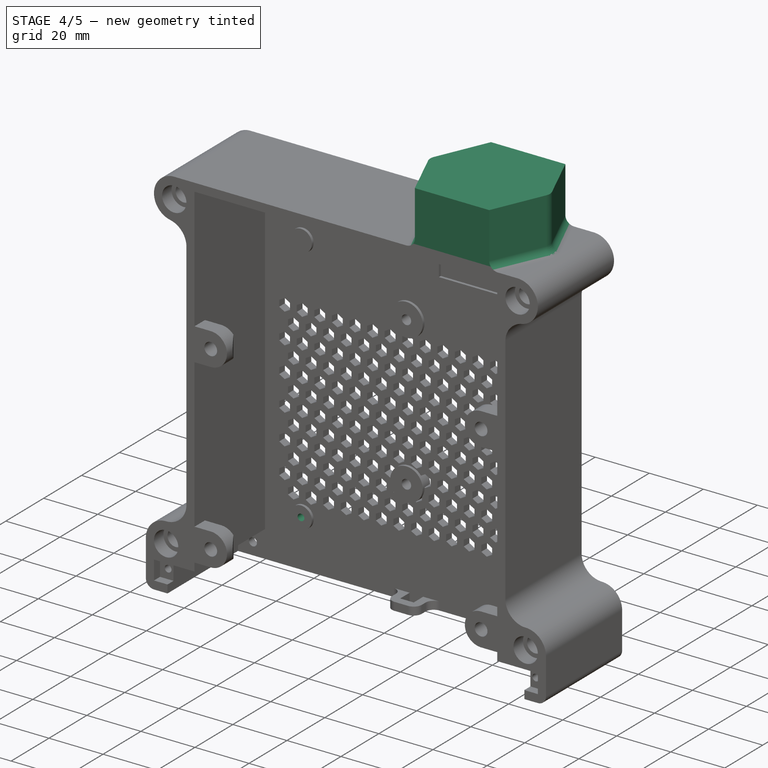
[diagram: stage 4 of 5 — iso view after this stage's code; geometry added in this stage tinted green]
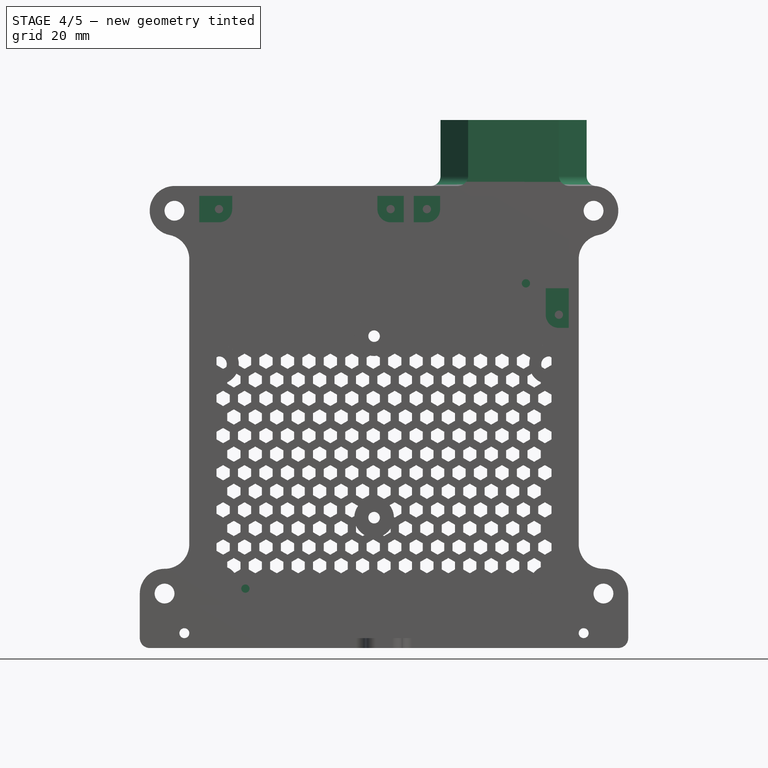
[diagram: stage 4 of 5 — front view after this stage's code; geometry added in this stage tinted green]
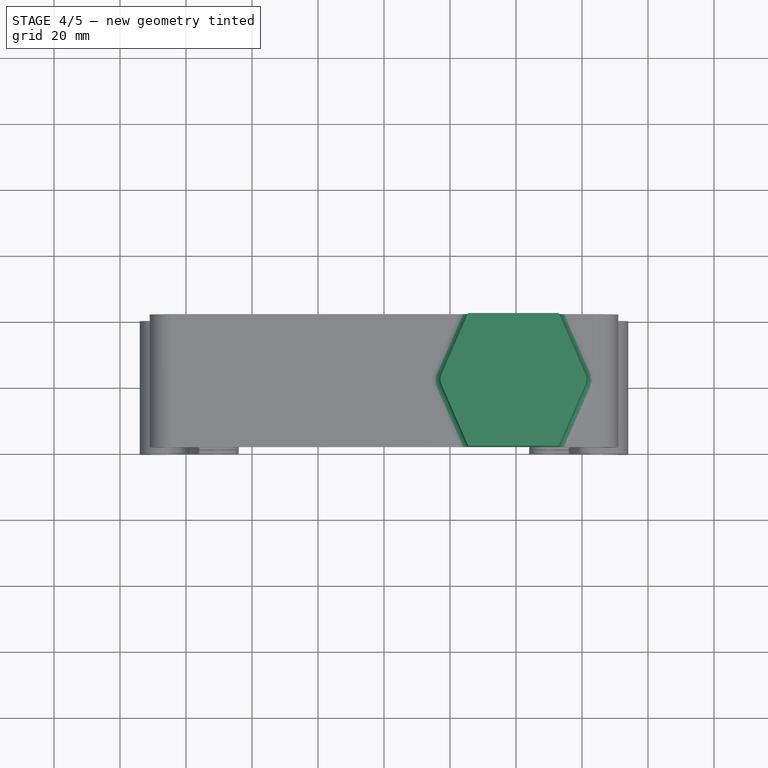
[diagram: stage 4 of 5 — top view after this stage's code; geometry added in this stage tinted green]
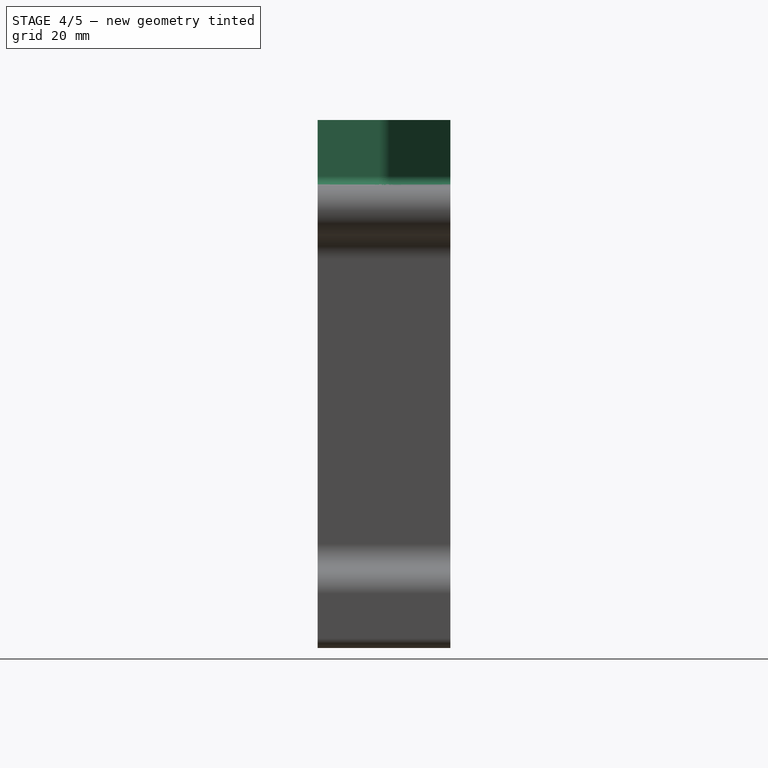
[diagram: stage 4 of 5 — right view after this stage's code; geometry added in this stage tinted green]
FEATURE [PartDesign::Pocket] Pocket013
  BaseFeature = -> Pad004
  Direction = (0,1,-2e-16)
  Length = 3
  Length2 = 5
  Placement = pos=(0,0,0) rot=(1,0,0;1.5708rad)
  Profile = -> Sketch018
  ReferenceAxis = -> Sketch018 [N_Axis]
  Refine = true
  Suppressed = false
  Type = 0
FEATURE [Sketcher::SketchObject] Sketch020
  ArcFitTolerance = 1e-06
  AttachmentSupport = -> [Pocket013]
  ExternalGeometry = -> [Pocket013]
  FullyConstrained = true
  MakeInternals = false
  MapMode = 5
  Placement = pos=(0,-3,0) rot=(1,0,0;1.5708rad)
  sketch-geometry (16):
    g0: LineSegment StartX=-56 StartY=67 StartZ=0 EndX=-56 EndY=59 EndZ=0
    g1: LineSegment StartX=-56 StartY=59 StartZ=0 EndX=-46 EndY=59 EndZ=0
    g2: LineSegment StartX=-46 StartY=59 StartZ=0 EndX=-46 EndY=67 EndZ=0
    g3: LineSegment StartX=-46 StartY=67 StartZ=0 EndX=-56 EndY=67 EndZ=0
    g4: LineSegment StartX=-2 StartY=59 StartZ=0 EndX=6 EndY=59 EndZ=0
    g5: LineSegment StartX=6 StartY=59 StartZ=0 EndX=6 EndY=67 EndZ=0
    g6: LineSegment StartX=6 StartY=67 StartZ=0 EndX=-2 EndY=67 EndZ=0
    g7: LineSegment StartX=9 StartY=67 StartZ=0 EndX=17 EndY=67 EndZ=0
    g8: LineSegment StartX=17 StartY=67 StartZ=0 EndX=17 EndY=59 EndZ=0
    g9: LineSegment StartX=17 StartY=59 StartZ=0 EndX=9 EndY=59 EndZ=0
    g10: LineSegment StartX=9 StartY=59 StartZ=0 EndX=9 EndY=67 EndZ=0
    g11: LineSegment StartX=49 StartY=39 StartZ=0 EndX=49 EndY=27 EndZ=0
    g12: LineSegment StartX=49 StartY=27 StartZ=0 EndX=56 EndY=27 EndZ=0
    g13: LineSegment StartX=56 StartY=27 StartZ=0 EndX=56 EndY=39 EndZ=0
    g14: LineSegment StartX=56 StartY=39 StartZ=0 EndX=49 EndY=39 EndZ=0
    g15: LineSegment StartX=-2 StartY=67 StartZ=0 EndX=-2 EndY=59 EndZ=0
  constraints (44):
    c: PointOnObject(g0,g-4)
    c: Coincident(g0,g1)
    c: Horizontal(g1)
    c: Coincident(g1,g2)
    c: PointOnObject(g2,g-3)
    c: Vertical(g2)
    c: Coincident(g2,g3)
    c: Coincident(g3,g0)
    c: PointOnObject(g4,g-5)
    c: Horizontal(g4)
    c: Coincident(g4,g5)
    c: Coincident(g5,g-5)
    c: Coincident(g5,g6)
    c: Horizontal(g6)
    c: Coincident(g-6,g7)
    c: PointOnObject(g7,g-3)
    c: Coincident(g7,g8)
    c: Vertical(g8)
    c: Coincident(g8,g9)
    c: PointOnObject(g9,g-6)
    c: Horizontal(g9)
    c: Coincident(g9,g10)
    c: Coincident(g10,g7)
    c: PointOnObject(g11,g-8)
    c: Vertical(g11)
    c: Coincident(g11,g12)
    c: PointOnObject(g12,g-7)
    c: Horizontal(g12)
    c: Coincident(g12,g13)
    c: Coincident(g13,g-8)
    c: Coincident(g13,g14)
    c: Coincident(g14,g11)
    c: Distance(g1,g3) = 8
    c: Distance(g4,g6) = 8
    c: Distance(g9,g7) = 8
    c: Distance(g2,g0) = 10
    c: Distance(g8,g10) = 8
    c: Distance(g13,g11) = 7
    c: Distance(g12,g14) = 12
    c: Coincident(g15,g6)
    c: Coincident(g15,g4)
    c: Vertical(g15)
    c: Distance(g5,g15) = 8
    c: Coincident(g0,g-4)
FEATURE [PartDesign::Pad] Pad005
  BaseFeature = -> Pocket013
  Direction = (0,-1,2e-16)
  Length = 5
  Length2 = 10
  Placement = pos=(0,0,0) rot=(1,0,0;1.5708rad)
  Profile = -> Sketch020
  ReferenceAxis = -> Sketch020 [N_Axis]
  Refine = true
  Suppressed = false
  Type = 0
FEATURE [PartDesign::Fillet] Fillet002
  Base = -> Pad005 [Edge3552,Edge3566,Edge3712,Edge3580]
  BaseFeature = -> Pad005
  Placement = pos=(0,0,0) rot=(1,0,0;1.5708rad)
  Radius = 4
  Refine = true
  SupportTransform = false
  Suppressed = false
  UseAllEdges = false
FEATURE [Sketcher::SketchObject] Sketch021
  ArcFitTolerance = 1e-06
  AttachmentSupport = -> [Fillet002]
  ExternalGeometry = -> [Fillet002]
  FullyConstrained = true
  MakeInternals = false
  MapMode = 5
  Placement = pos=(0,-8,1.8e-15) rot=(1,0,0;1.5708rad)
  sketch-geometry (4):
    g0: Circle CenterX=-50 CenterY=63 CenterZ=0 NormalX=0 NormalY=0 NormalZ=1 AngleXU=0 Radius=1.25
    g1: Circle CenterX=2 CenterY=63 CenterZ=0 NormalX=0 NormalY=0 NormalZ=1 AngleXU=0 Radius=1.25
    g2: Circle CenterX=13 CenterY=63 CenterZ=0 NormalX=0 NormalY=0 NormalZ=1 AngleXU=0 Radius=1.25
    g3: Circle CenterX=53 CenterY=31 CenterZ=0 NormalX=0 NormalY=0 NormalZ=1 AngleXU=0 Radius=1.25
  constraints (8):
    c: Coincident(g0,g-3)
    c: Coincident(g1,g-4)
    c: Coincident(g2,g-5)
    c: Coincident(g3,g-6)
    c: Diameter(g3) = 2.5
    c: Diameter(g2) = 2.5
    c: Diameter(g1) = 2.5
    c: Diameter(g0) = 2.5
FEATURE [PartDesign::Pocket] Pocket014
  BaseFeature = -> Fillet002
  Direction = (0,1,-2e-16)
  Length = 5
  Length2 = 5
  Placement = pos=(0,0,0) rot=(1,0,0;1.5708rad)
  Profile = -> Sketch021
  ReferenceAxis = -> Sketch021 [N_Axis]
  Refine = true
  Suppressed = false
  Type = 0
FEATURE [Sketcher::SketchObject] Sketch022
  ArcFitTolerance = 1e-06
  AttachmentSupport = -> [Pocket014]
  ExternalGeometry = -> [Pocket014]
  FullyConstrained = true
  MakeInternals = false
  MapMode = 5
  Placement = pos=(0,2.45e-14,70) rot=(0,0,1;3.14159rad)
  sketch-geometry (10):
    g0: LineSegment StartX=-61.75 StartY=20.125 StartZ=0 EndX=-53 EndY=40.25 EndZ=0
    g1: LineSegment StartX=-53 StartY=40.25 StartZ=0 EndX=-25.5 EndY=40.25 EndZ=0
    g2: LineSegment StartX=-25.5 StartY=40.25 StartZ=0 EndX=-16.75 EndY=20.125 EndZ=0
    g3: LineSegment StartX=-16.75 StartY=20.125 StartZ=0 EndX=-25.5 EndY=0 EndZ=0
    g4: LineSegment StartX=-25.5 StartY=0 StartZ=0 EndX=-53 EndY=0 EndZ=0
    g5: LineSegment StartX=-53 StartY=0 StartZ=0 EndX=-61.75 EndY=20.125 EndZ=0
    g6: LineSegment [constr] StartX=-61.75 StartY=20.125 StartZ=0 EndX=-16.75 EndY=20.125 EndZ=0
    g7: LineSegment [constr] StartX=-39.25 StartY=40.25 StartZ=0 EndX=-39.25 EndY=0 EndZ=0
    g8: GeomPoint [constr] X=-39.25 Y=20.125 Z=0
    g9: GeomPoint [constr] X=-39.25 Y=20.125 Z=0
  constraints (23):
    c: Coincident(g0,g1)
    c: Horizontal(g1)
    c: Coincident(g1,g2)
    c: Coincident(g2,g3)
    c: Coincident(g3,g4)
    c: Horizontal(g4)
    c: Coincident(g4,g5)
    c: Coincident(g5,g0)
    c: Coincident(g6,g0)
    c: Coincident(g6,g2)
    c: Horizontal(g6)
    c: Symmetric(g1,g1,g7)
    c: Symmetric(g4,g4,g7)
    c: Vertical(g7)
    c: DistanceX(g6,g6) = 45
    c: PointOnObject(g7,g-3)
    c: PointOnObject(g7,g-1)
    c: Symmetric(g6,g6,g8)
    c: Symmetric(g7,g7,g9)
    c: Coincident(g8,g9)
    c: DistanceX(g1,g-1) = 25.5
    c: Distance(g1,g1) = 27.5
    c: DistanceX(g4,g4) = 27.5
FEATURE [PartDesign::Pad] Pad006  label="PowerPlug Pad"
  BaseFeature = -> Pocket014
  Direction = (0,0,1)
  Length = 20
  Length2 = 10
  Placement = pos=(0,0,0) rot=(1,0,0;1.5708rad)
  Profile = -> Sketch022
  ReferenceAxis = -> Sketch022 [N_Axis]
  Refine = true
  Suppressed = false
  Type = 0
FEATURE [PartDesign::Fillet] Fillet003
  Base = -> Pad006 [Edge3677,Edge3683]
  BaseFeature = -> Pad006
  Placement = pos=(0,0,0) rot=(1,0,0;1.5708rad)
  Radius = 4
  Refine = true
  SupportTransform = false
  Suppressed = false
  UseAllEdges = false
FEATURE [PartDesign::Fillet] Fillet004
  Base = -> Fillet003 [Edge1227,Edge1]
  BaseFeature = -> Fillet003
  Placement = pos=(0,0,0) rot=(1,0,0;1.5708rad)
  Radius = 3
  Refine = true
  SupportTransform = false
  Suppressed = false
  UseAllEdges = false
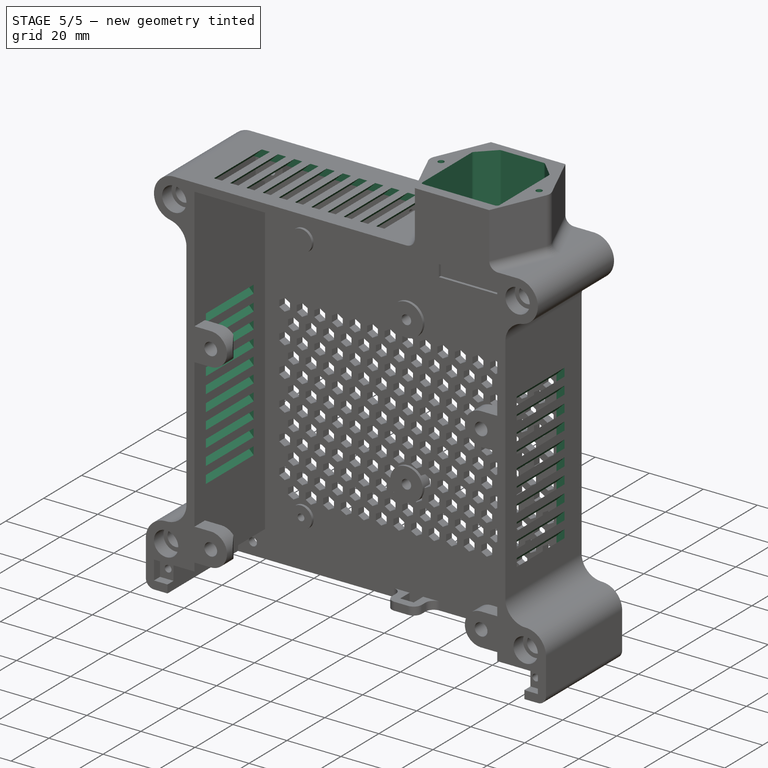
[diagram: stage 5 of 5 — iso view after this stage's code; geometry added in this stage tinted green]
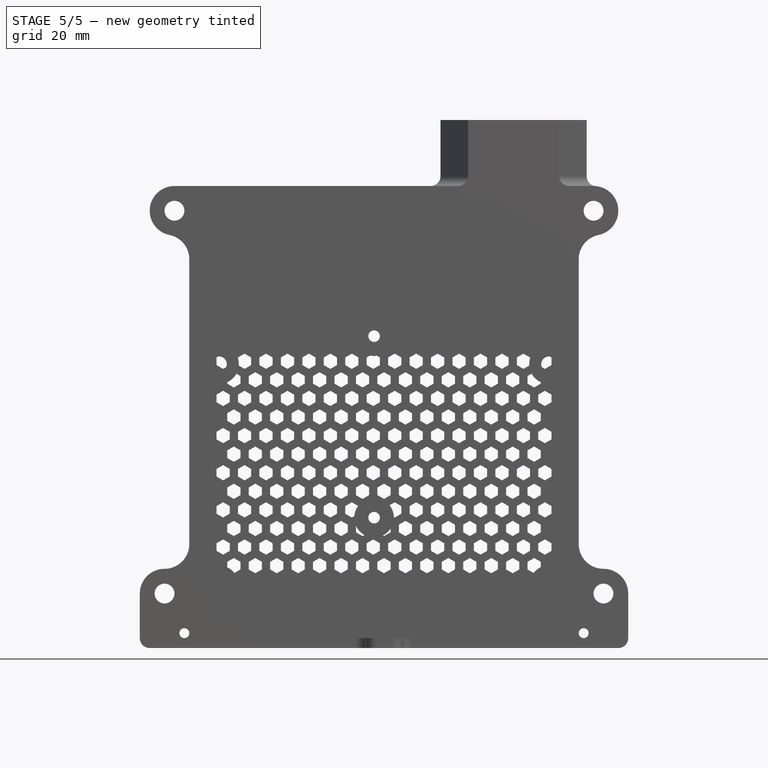
[diagram: stage 5 of 5 — front view after this stage's code; geometry added in this stage tinted green]
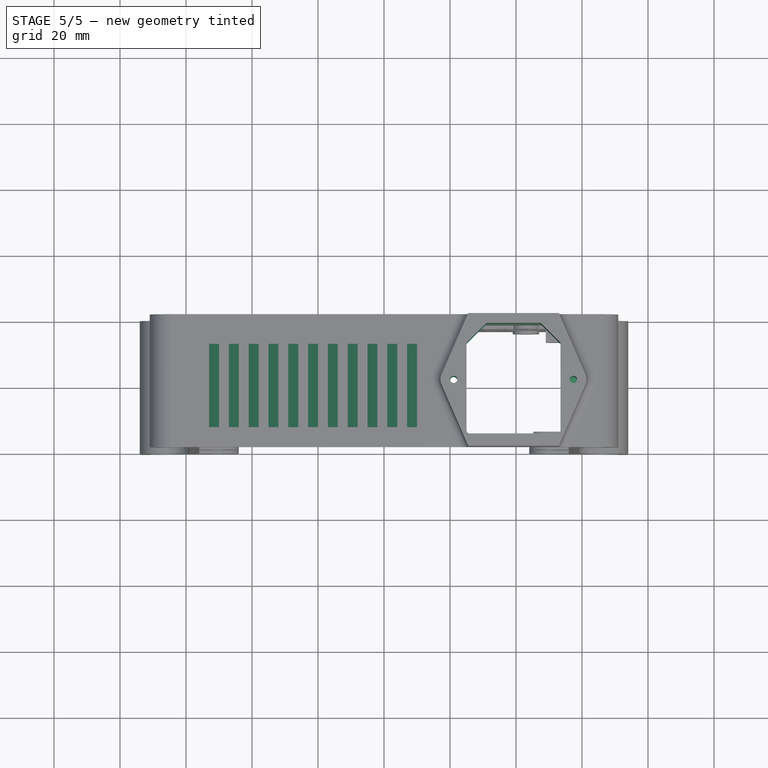
[diagram: stage 5 of 5 — top view after this stage's code; geometry added in this stage tinted green]
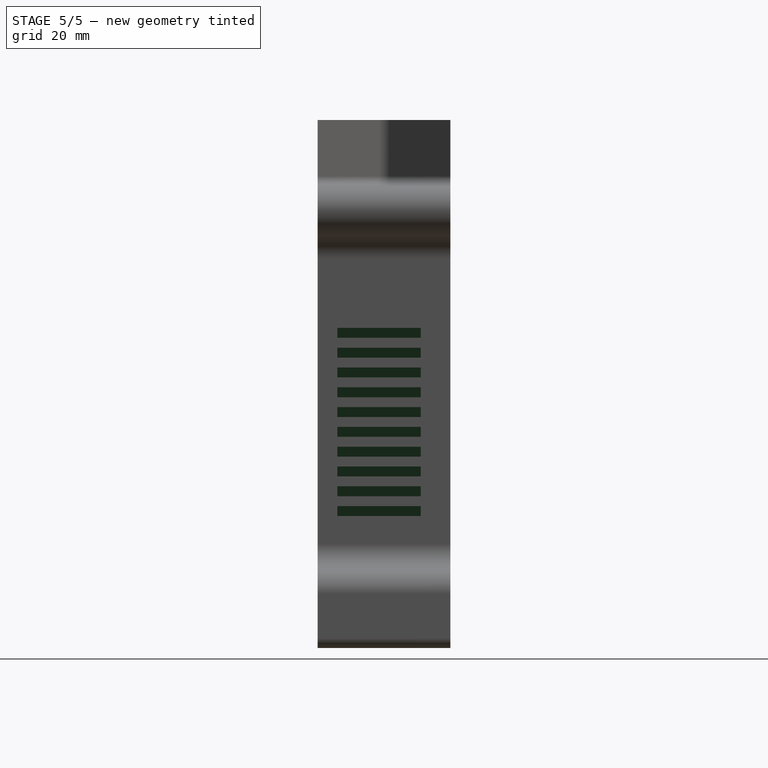
[diagram: stage 5 of 5 — right view after this stage's code; geometry added in this stage tinted green]
FEATURE [Sketcher::SketchObject] Sketch023
  ArcFitTolerance = 1e-06
  AttachmentSupport = -> [Fillet004]
  ExternalGeometry = -> [Fillet004]
  FullyConstrained = true
  MakeInternals = false
  MapMode = 5
  Placement = pos=(0,0,90) rot=(0,0,1;3.14159rad)
  sketch-geometry (7):
    g0: LineSegment StartX=-53.5 StartY=36.5 StartZ=0 EndX=-25 EndY=36.5 EndZ=0
    g1: LineSegment StartX=-25 StartY=36.5 StartZ=0 EndX=-25 EndY=9 EndZ=0
    g2: LineSegment StartX=-25 StartY=9 StartZ=0 EndX=-31 EndY=3 EndZ=0
    g3: LineSegment StartX=-31 StartY=3 StartZ=0 EndX=-47.5 EndY=3 EndZ=0
    g4: LineSegment StartX=-47.5 StartY=3 StartZ=0 EndX=-53.5 EndY=9 EndZ=0
    g5: LineSegment StartX=-53.5 StartY=9 StartZ=0 EndX=-53.5 EndY=36.5 EndZ=0
    g6: LineSegment [constr] StartX=-39.25 StartY=36.5 StartZ=0 EndX=-39.25 EndY=3 EndZ=0
  constraints (20):
    c: Horizontal(g0)
    c: Coincident(g0,g1)
    c: Vertical(g1)
    c: Coincident(g1,g2)
    c: Coincident(g2,g3)
    c: Horizontal(g3)
    c: Coincident(g3,g4)
    c: Coincident(g4,g5)
    c: Coincident(g5,g0)
    c: Vertical(g5)
    c: Symmetric(g0,g0,g6)
    c: Symmetric(g3,g3,g6)
    c: Vertical(g6)
    c: Distance(g1,g5) = 28.5
    c: Distance(g3,g5) = 6
    c: Distance(g4,g3) = 6
    c: Distance(g3,g0) = 33.5
    c: Distance(g1,g3) = 6
    c: PointOnObject(g6,g-4)
    c: Distance(g5,g-3) = 2.5
FEATURE [PartDesign::Pocket] Pocket015  label="PowerPlug Pocket"
  BaseFeature = -> Fillet004
  Direction = (0,0,-1)
  Length = 0
  Length2 = 5
  Placement = pos=(0,0,0) rot=(1,0,0;1.5708rad)
  Profile = -> Sketch023
  ReferenceAxis = -> Sketch023 [N_Axis]
  Refine = true
  Suppressed = false
  Type = 3
  UpToFace = -> Fillet004 [Face43]
FEATURE [PartDesign::Fillet] Fillet005
  Base = -> Pocket015 [Edge1380,Edge1385,Edge1384,Edge1383,Edge1381,Edge1382]
  BaseFeature = -> Pocket015
  Placement = pos=(0,0,0) rot=(1,0,0;1.5708rad)
  Radius = 1
  Refine = true
  SupportTransform = false
  Suppressed = false
  UseAllEdges = false
FEATURE [Sketcher::SketchObject] Sketch024
  ArcFitTolerance = 1e-06
  AttachmentSupport = -> [Fillet005]
  ExternalGeometry = -> [Fillet005]
  FullyConstrained = true
  MakeInternals = false
  MapMode = 5
  Placement = pos=(0,0,90) rot=(0,0,1;3.14159rad)
  sketch-geometry (3):
    g0: Circle CenterX=-57.3883 CenterY=20.125 CenterZ=0 NormalX=0 NormalY=0 NormalZ=1 AngleXU=0 Radius=1.1
    g1: Circle CenterX=-21.1117 CenterY=20.125 CenterZ=0 NormalX=0 NormalY=0 NormalZ=1 AngleXU=0 Radius=1.1
    g2: LineSegment [constr] StartX=-57.3883 StartY=20.125 StartZ=0 EndX=-21.1117 EndY=20.125 EndZ=0
  constraints (6):
    c: Coincident(g2,g0)
    c: Coincident(g2,g1)
    c: Coincident(g-3,g0)
    c: Coincident(g1,g-4)
    c: Diameter(g1) = 2.2
    c: Diameter(g0) = 2.2
FEATURE [PartDesign::Pocket] Pocket016  label="PowerPlug Holes"
  BaseFeature = -> Fillet005
  Direction = (0,0,-1)
  Length = 0
  Length2 = 5
  Placement = pos=(0,0,0) rot=(1,0,0;1.5708rad)
  Profile = -> Sketch024
  ReferenceAxis = -> Sketch024 [N_Axis]
  Refine = true
  Suppressed = false
  Type = 3
  UpToFace = -> Fillet005 [Face22]
FEATURE [Sketcher::SketchObject] Sketch025
  ArcFitTolerance = 1e-06
  AttachmentSupport = -> [Pocket016]
  ExternalGeometry = -> [Pocket016]
  FullyConstrained = true
  MakeInternals = false
  MapMode = 5
  Placement = pos=(0,-40.25,0) rot=(1,0,0;1.5708rad)
  sketch-geometry (8):
    g0: LineSegment StartX=56 StartY=3.69e-14 StartZ=0 EndX=59 EndY=3 EndZ=0
    g1: LineSegment StartX=59 StartY=3 StartZ=0 EndX=59 EndY=0 EndZ=0
    g2: LineSegment StartX=59 StartY=0 StartZ=0 EndX=56 EndY=-3 EndZ=0
    g3: LineSegment StartX=56 StartY=-3 StartZ=0 EndX=56 EndY=3.69e-14 EndZ=0
    g4: LineSegment StartX=-56 StartY=1.839e-12 StartZ=0 EndX=-59 EndY=3 EndZ=0
    g5: LineSegment StartX=-59 StartY=3 StartZ=0 EndX=-59 EndY=0 EndZ=0
    g6: LineSegment StartX=-59 StartY=0 StartZ=0 EndX=-56 EndY=-3 EndZ=0
    g7: LineSegment StartX=-56 StartY=-3 StartZ=0 EndX=-56 EndY=1.839e-12 EndZ=0
  constraints (24):
    c: Coincident(g0,g1)
    c: Vertical(g1)
    c: Coincident(g1,g2)
    c: Coincident(g2,g3)
    c: Coincident(g3,g0)
    c: Vertical(g3)
    c: Parallel(g2,g0)
    c: PointOnObject(g0,g-4)
    c: PointOnObject(g0,g-3)
    c: Angle(g0,g3) = 0.785398
    c: DistanceY(g1,g1) = 3
    c: PointOnObject(g1,g-1)
    c: Coincident(g5,g6)
    c: PointOnObject(g6,g-5)
    c: Coincident(g6,g7)
    c: Coincident(g7,g4)
    c: Vertical(g7)
    c: DistanceY(g5,g5) = 3
    c: Parallel(g6,g4)
    c: Coincident(g4,g5)
    c: Vertical(g5)
    c: PointOnObject(g4,g-6)
    c: PointOnObject(g5,g-1)
    c: Angle(g7,g6) = 0.785398
FEATURE [PartDesign::Pocket] Pocket017
  BaseFeature = -> Pocket016
  Direction = (0,1,-2e-16)
  Length = 31.25
  Length2 = -6
  Placement = pos=(0,0,0) rot=(1,0,0;1.5708rad)
  Profile = -> Sketch025
  ReferenceAxis = -> Sketch025 [N_Axis]
  Refine = true
  Suppressed = false
  Type = 4
FEATURE [PartDesign::LinearPattern] LinearPattern003
  Direction = -> Z_Axis001
  Length = 24
  Mode = 1
  Occurrences = 5
  Offset = 6
  Placement = pos=(0,0,0) rot=(1,0,0;1.5708rad)
  Refine = true
  Suppressed = false
  TransformMode = 0
FEATURE [PartDesign::LinearPattern] LinearPattern004
  Direction = -> Z_Axis001
  Length = 30
  Mode = 1
  Occurrences = 6
  Offset = 6
  Placement = pos=(0,0,0) rot=(1,0,0;1.5708rad)
  Refine = true
  Reversed = true
  Suppressed = false
  TransformMode = 0
FEATURE [PartDesign::MultiTransform] MultiTransform001
  BaseFeature = -> Pocket017
  Originals = -> [Pocket017]
  Placement = pos=(0,0,0) rot=(1,0,0;1.5708rad)
  Refine = true
  Suppressed = false
  TransformMode = 0
  Transformations = -> [LinearPattern003,LinearPattern004]
FEATURE [Sketcher::SketchObject] Sketch026
  ArcFitTolerance = 1e-06
  AttachmentSupport = -> [MultiTransform001]
  ExternalGeometry = -> [MultiTransform001]
  FullyConstrained = true
  MakeInternals = false
  MapMode = 5
  Placement = pos=(0,-40.25,0) rot=(1,0,0;1.5708rad)
  sketch-geometry (4):
    g0: LineSegment StartX=-53 StartY=70 StartZ=0 EndX=-56 EndY=67 EndZ=0
    g1: LineSegment StartX=-56 StartY=67 StartZ=0 EndX=-53 EndY=67 EndZ=0
    g2: LineSegment StartX=-53 StartY=67 StartZ=0 EndX=-50 EndY=70 EndZ=0
    g3: LineSegment StartX=-50 StartY=70 StartZ=0 EndX=-53 EndY=70 EndZ=0
  constraints (11):
    c: PointOnObject(g0,g-3)
    c: Coincident(g0,g1)
    c: PointOnObject(g1,g-4)
    c: Coincident(g1,g2)
    c: PointOnObject(g2,g-3)
    c: Coincident(g2,g3)
    c: Coincident(g3,g0)
    c: Angle(g1,g0) = 0.785398
    c: Distance(g3,g3) = 3
    c: Parallel(g0,g2)
    c: Coincident(g-5,g0)
FEATURE [PartDesign::Pocket] Pocket018
  BaseFeature = -> MultiTransform001
  Direction = (0,1,-2e-16)
  Length = 31.25
  Length2 = -6
  Placement = pos=(0,0,0) rot=(1,0,0;1.5708rad)
  Profile = -> Sketch026
  ReferenceAxis = -> Sketch026 [N_Axis]
  Refine = true
  Suppressed = false
  Type = 4
FEATURE [PartDesign::LinearPattern] LinearPattern005
  BaseFeature = -> Pocket018
  Direction = -> X_Axis001
  Length = 60
  Mode = 1
  Occurrences = 11
  Offset = 6
  Originals = -> [Pocket018]
  Placement = pos=(0,0,0) rot=(1,0,0;1.5708rad)
  Refine = true
  Suppressed = false
  TransformMode = 0
FEATURE [PartDesign::Body] Body  label="Stack_Module_PSU_vent001"
  AllowCompound = false
  Group = -> [Sketch,Pad,Sketch001,Pocket,Sketch002,Pocket001,Sketch003,Pocket002,MultiTransform,LinearPattern,LinearPattern001,LinearPattern002,Sketch004,Pad001,Sketch006,Pocket003,Sketch007,Pocket004,Sketch008,Pocket005,Sketch009,Pocket006,Sketch010,Pocket007,Sketch011,Pocket008,Sketch012,Pocket009,Sketch013,Pocket010,Sketch014,Pocket011,Fillet,Sketch015,Pad002,Fillet001,Mirrored,Sketch016,Pad003,Sketch017,+27 more]
  Origin = -> Origin001
  Tip = -> LinearPattern005
FEATURE [PartDesign::CoordinateSystem] LCS_1  label="foot_1"
  AttacherType = Attacher::AttachEngine3D
  AttachmentSupport = -> [LinearPattern005]
  MapMode = 11
  Placement = pos=(66.5,0,-53.5) rot=(0.57735,-0.57735,-0.57735;4.18879rad)
FEATURE [PartDesign::CoordinateSystem] LCS_2  label="foot_2"
  AttacherType = Attacher::AttachEngine3D
  AttachmentSupport = -> [LinearPattern005]
  MapMode = 11
  Placement = pos=(63.5,0,62.5) rot=(0.57735,-0.57735,-0.57735;4.18879rad)
FEATURE [PartDesign::CoordinateSystem] LCS_3  label="foot_3"
  AttacherType = Attacher::AttachEngine3D
  AttachmentSupport = -> [LinearPattern005]
  MapMode = 11
  Placement = pos=(-66.5,1.48e-14,-53.5) rot=(0.57735,0.57735,-0.57735;2.0944rad)
FEATURE [PartDesign::CoordinateSystem] LCS_4  label="foot_4"
  AttacherType = Attacher::AttachEngine3D
  AttachmentSupport = -> [LinearPattern005]
  MapMode = 11
  Placement = pos=(-63.5,1.41e-14,62.5) rot=(0.57735,0.57735,-0.57735;2.0944rad)
FEATURE [PartDesign::CoordinateSystem] upper_attachment
  AttacherType = Attacher::AttachEngine3D
  AttachmentSupport = -> [LinearPattern005]
  MapMode = 11
  Placement = pos=(-63.5,-40.25,62.5) rot=(0.57735,0.57735,0.57735;4.18879rad)
FEATURE [PartDesign::CoordinateSystem] PSU_attachment
  AttacherType = Attacher::AttachEngine3D
  AttachmentSupport = -> [LinearPattern005]
  MapMode = 11
  Placement = pos=(-3,-4,-30.5) rot=(0.57735,-0.57735,0.57735;2.0944rad)
FEATURE [PartDesign::CoordinateSystem] screen_attachment
  AttacherType = Attacher::AttachEngine3D
  AttachmentSupport = -> [LinearPattern005]
  MapMode = 11
  Placement = pos=(-60.5,-3,-65.5) rot=(0.57735,0.57735,0.57735;4.18879rad)
FEATURE [PartDesign::CoordinateSystem] powerplug_attachment
  AttacherType = Attacher::AttachEngine3D
  AttachmentSupport = -> [LinearPattern005]
  MapMode = 11
  Placement = pos=(21.1117,-20.125,90) rot=(0,0,-1;1.5708rad)
FEATURE [PartDesign::CoordinateSystem] spacer_att  label="spacer_att_1"
  AttacherType = Attacher::AttachEngine3D
  AttachmentSupport = -> [LinearPattern005]
  MapMode = 11
  Placement = pos=(66.5,-35.25,-53.5) rot=(0.57735,-0.57735,0.57735;2.0944rad)
FEATURE [PartDesign::CoordinateSystem] spacer_att_2
  AttacherType = Attacher::AttachEngine3D
  AttachmentSupport = -> [LinearPattern005]
  MapMode = 11
  Placement = pos=(63.5,-35.25,62.5) rot=(0.57735,-0.57735,0.57735;2.0944rad)
FEATURE [PartDesign::CoordinateSystem] spacer_att_3
  AttacherType = Attacher::AttachEngine3D
  AttachmentSupport = -> [LinearPattern005]
  MapMode = 11
  Placement = pos=(-63.5,-35.25,62.5) rot=(0.57735,0.57735,0.57735;4.18879rad)
FEATURE [PartDesign::CoordinateSystem] spacer_att_004
  AttacherType = Attacher::AttachEngine3D
  AttachmentSupport = -> [LinearPattern005]
  MapMode = 11
  Placement = pos=(-66.5,-35.25,-53.5) rot=(0.57735,0.57735,0.57735;4.18879rad)
FEATURE [PartDesign::CoordinateSystem] linecover_att
  AttacherType = Attacher::AttachEngine3D
  AttachmentSupport = -> [LinearPattern005]
  MapMode = 11
  Placement = pos=(13,-8,63) rot=(0.57735,-0.57735,0.57735;2.0944rad)
FEATURE [App::Part] Part  label="Stack_Module_PSU_vent"
  Group = -> [Body,LCS_1,LCS_2,LCS_3,LCS_4,upper_attachment,PSU_attachment,screen_attachment,powerplug_attachment,spacer_att,spacer_att_2,spacer_att_3,spacer_att_004,linecover_att]
  Origin = -> Origin
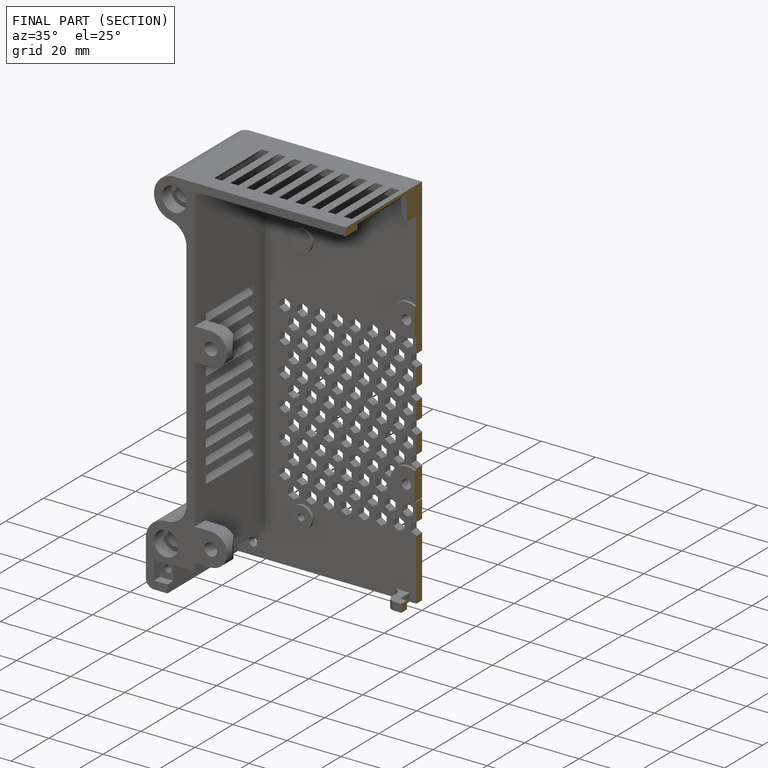
[diagram: finished part — half-section view (interior)]
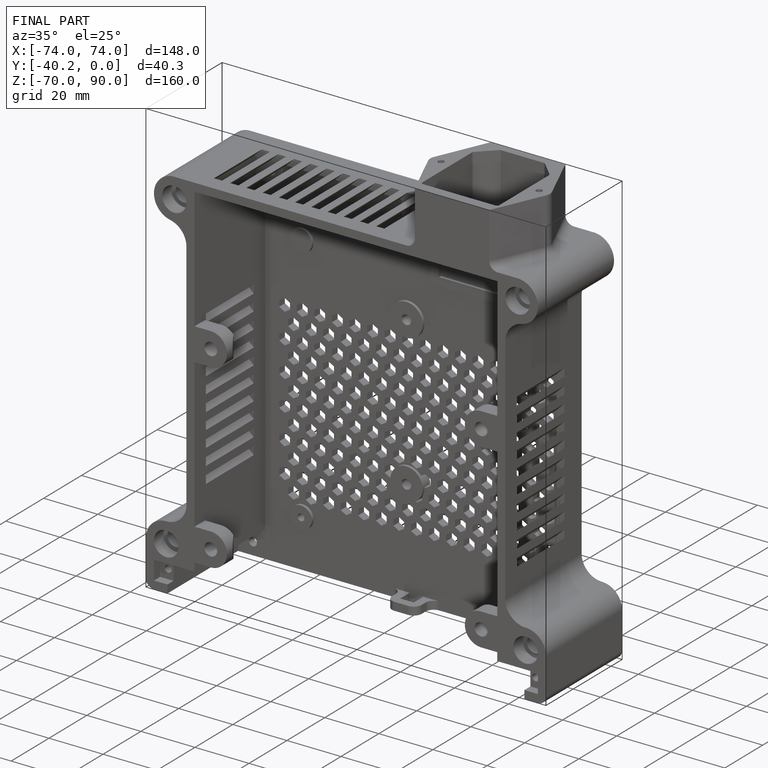
[diagram: finished part — iso view with bounding-box wireframe]
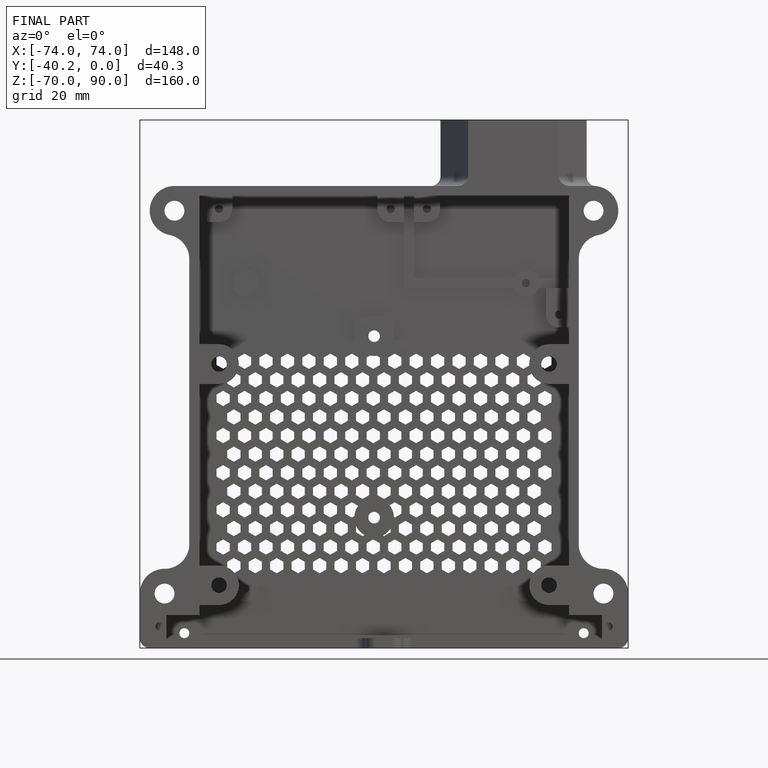
[diagram: finished part — front view with bounding-box wireframe]
